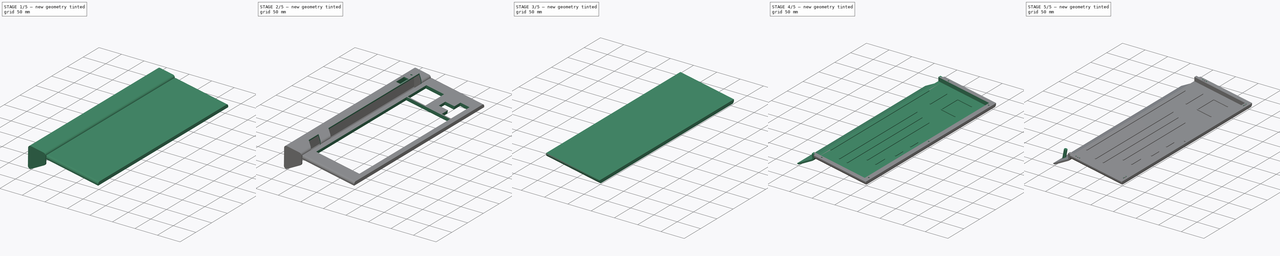
[diagram: build sequence overview — one tinted view per stage of 5, left to right]
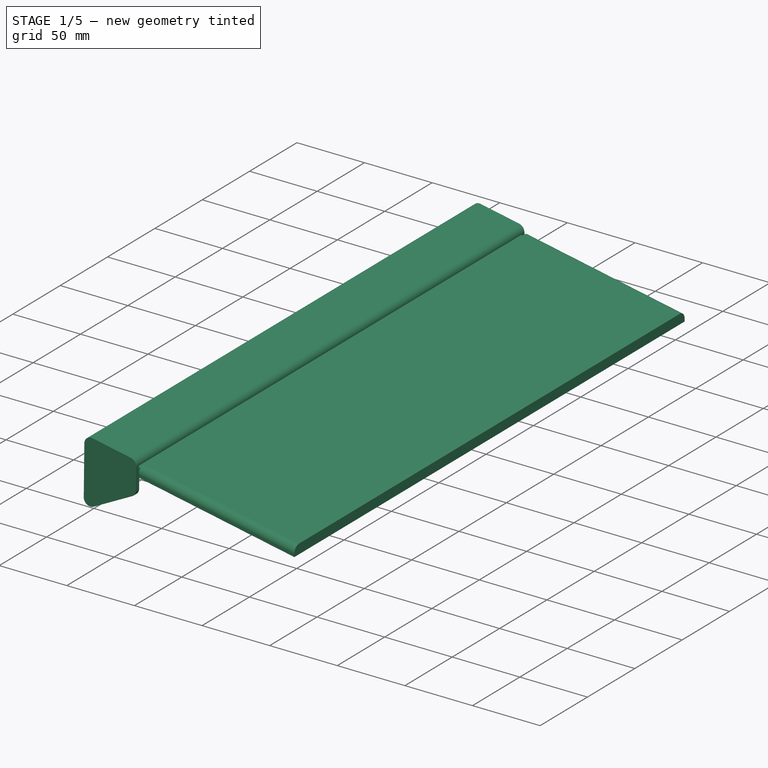
[diagram: stage 1 of 5 — iso view after this stage's code; geometry added in this stage tinted green]
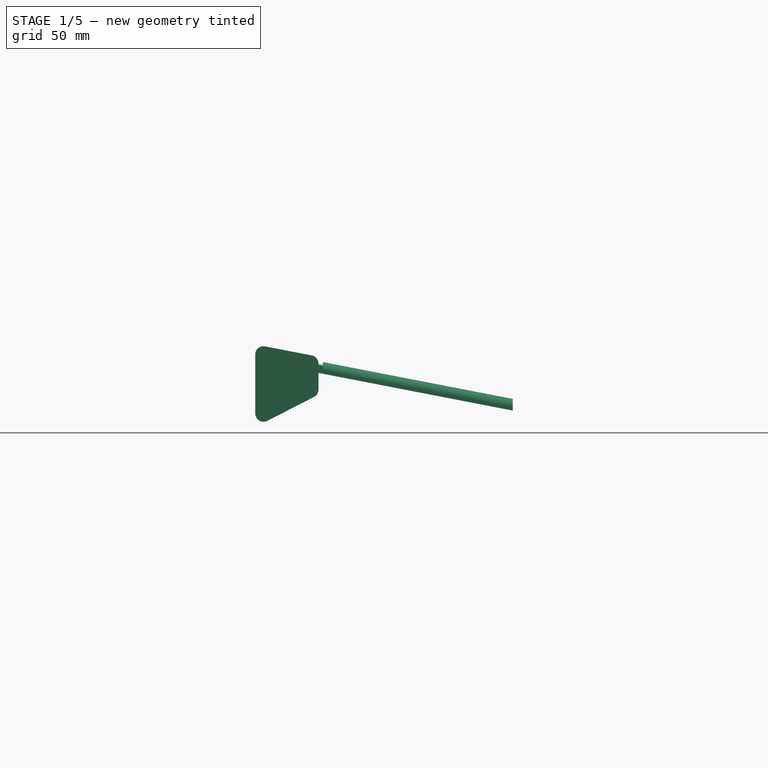
[diagram: stage 1 of 5 — front view after this stage's code; geometry added in this stage tinted green]
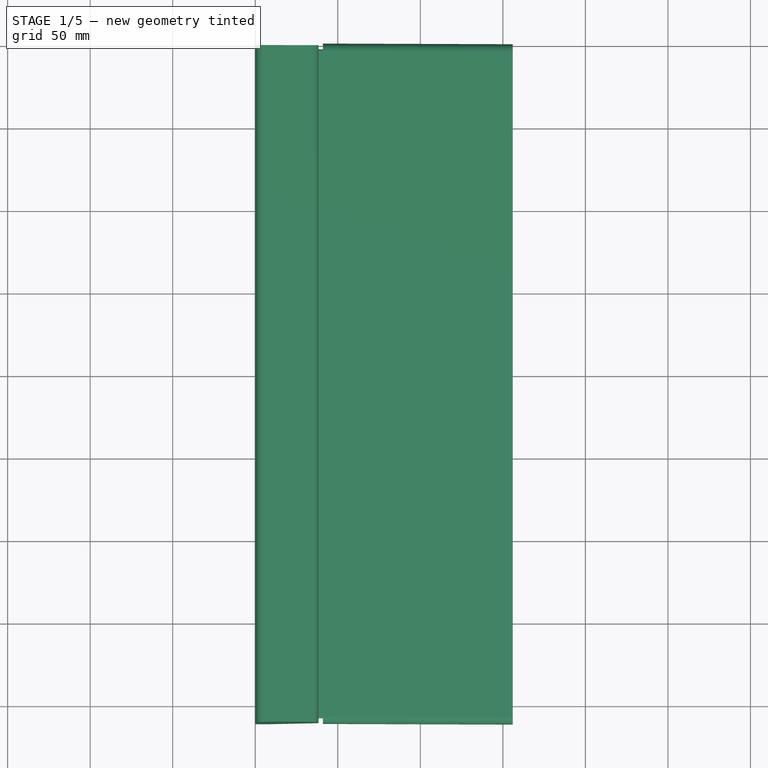
[diagram: stage 1 of 5 — top view after this stage's code; geometry added in this stage tinted green]
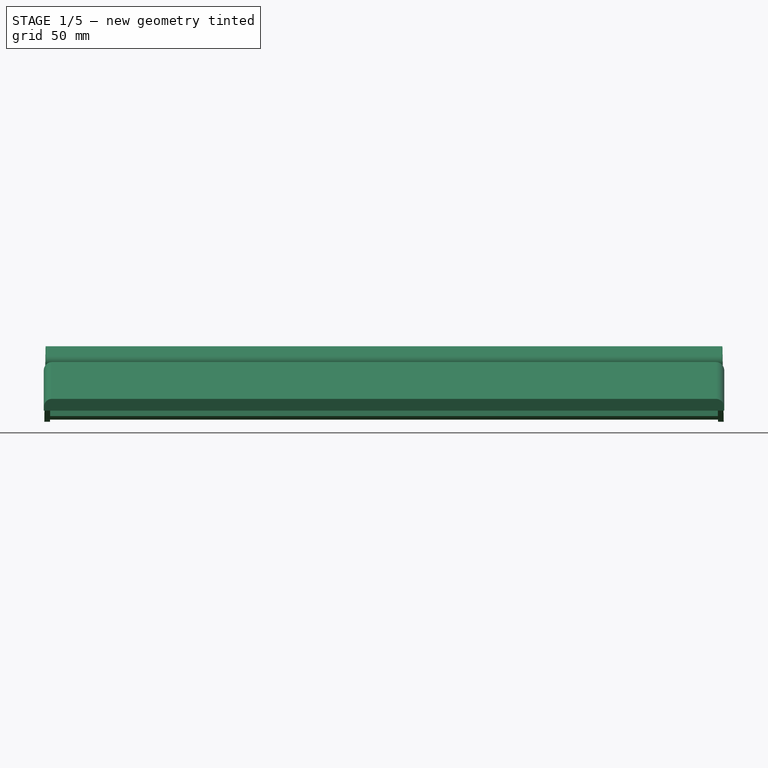
[diagram: stage 1 of 5 — right view after this stage's code; geometry added in this stage tinted green]
FCSTD DOCUMENT  (FreeCAD 1.0R38806 (Git))
Label: DecenTKL-Enclosure
License: All rights reserved
LicenseURL: http://en.wikipedia.org/wiki/All_rights_reserved
objects: Sketcher::SketchObject×25, PartDesign::Pocket×14, PartDesign::Pad×12, PartDesign::SubShapeBinder×12, PartDesign::Plane×10, PartDesign::Line×5, PartDesign::Point×4, App::Part×4, PartDesign::Fillet×3, Part::Offset2D×2, Part::Feature×2, PartDesign::Body×2, PartDesign::Draft×1, PartDesign::Chamfer×1, Part::Part2DObjectPython×1, PartDesign::AdditiveLoft×1, PartDesign::ShapeBinder×1
note: 185 computed .brp shape members not serialized (recipe doc carries the construction recipe); baked Part::Feature solids carry a one-line shape summary decoded from their .brp

FEATURE [Sketcher::SketchObject] Sketch  label="ConsoleKeySectionSketch"
  ArcFitTolerance = 0
  AttachmentSupport = -> [XZ_Plane001]
  FullyConstrained = true
  MakeInternals = false
  MapMode = 5
  Placement = pos=(0,0,0) rot=(1,0,0;1.5708rad)
  sketch-geometry (12):
    g0: LineSegment StartX=5.95204 StartY=54.1257 StartZ=0 EndX=34.2385 EndY=48.6393 EndZ=0
    g1: ArcOfCircle CenterX=33.2865 CenterY=43.7308 CenterZ=0 NormalX=0 NormalY=0 NormalZ=1 AngleXU=0 Radius=5 StartAngle=3e-16 EndAngle=1.37922
    g2: LineSegment StartX=38.2865 StartY=43.7308 StartZ=0 EndX=38.2865 EndY=27.9135 EndZ=0
    g3: ArcOfCircle CenterX=33.2865 CenterY=27.9135 CenterZ=0 NormalX=0 NormalY=0 NormalZ=1 AngleXU=0 Radius=5 StartAngle=5.185 EndAngle=6.28319
    g4: LineSegment StartX=35.5625 StartY=23.4615 StartZ=0 EndX=7.27606 EndY=9 EndZ=0
    g5: ArcOfCircle CenterX=5 CenterY=13.4519 CenterZ=0 NormalX=0 NormalY=0 NormalZ=1 AngleXU=0 Radius=5 StartAngle=3.14159 EndAngle=5.185
    g6: LineSegment StartX=3.46e-14 StartY=13.4519 StartZ=0 EndX=3.46e-14 EndY=49.2171 EndZ=0
    g7: ArcOfCircle CenterX=5 CenterY=49.2171 CenterZ=0 NormalX=0 NormalY=0 NormalZ=1 AngleXU=0 Radius=5 StartAngle=1.37922 EndAngle=3.14159
    g8: GeomPoint [constr] X=0 Y=55.2801 Z=0
    g9: GeomPoint [constr] X=38.2865 Y=47.8542 Z=0
    g10: GeomPoint [constr] X=0 Y=5.2801 Z=0
    g11: GeomPoint [constr] X=38.2865 Y=24.8542 Z=0
  constraints (28):
    c: Tangent(g0,g1) = 1.5708
    c: Tangent(g2,g3) = 1.5708
    c: Tangent(g4,g5) = 1.5708
    c: Tangent(g6,g7) = 1.5708
    c: Tangent(g7,g0) = 1.5708
    c: Tangent(g5,g6) = 1.5708
    c: Tangent(g3,g4) = 1.5708
    c: Tangent(g1,g2) = 1.5708
    c: PointOnObject(g8,g0)
    c: PointOnObject(g8,g6)
    c: PointOnObject(g9,g0)
    c: PointOnObject(g9,g2)
    c: PointOnObject(g11,g2)
    c: PointOnObject(g11,g4)
    c: PointOnObject(g10,g4)
    c: PointOnObject(g10,g6)
    c: Distance(g8,g9) = 39
    c: Radius(g1) = 5
    c: Equal(g1,g7)
    c: Equal(g1,g3)
    c: Equal(g1,g5)
    c: Distance(g9,g11) = 23
    c: Distance(g8,g10) = 50
    c: Distance(g10,g11) = 43
    c: Vertical(g6)
    c: Vertical(g2)
    c: DistanceY(g-1,g4) = 9
    c: DistanceX(g-1,g5) = 0
FEATURE [PartDesign::Pad] Pad  label="ConsoleKeySection"
  Direction = (0,-1,2e-16)
  Length = 410
  Length2 = 10
  Placement = pos=(0,0,0) rot=(1,0,0;1.5708rad)
  Profile = -> Sketch
  ReferenceAxis = -> Sketch [N_Axis]
  Suppressed = false
  Type = 0
FEATURE [PartDesign::Draft] Draft  label="KeySectionDraft"
  Angle = 1
  Base = -> Pad [Face10,Face9]
  BaseFeature = -> Pad
  NeutralPlane = -> Pad [Face1]
  Placement = pos=(0,0,0) rot=(1,0,0;1.5708rad)
  SupportTransform = false
  Suppressed = false
FEATURE [PartDesign::Plane] DatumPlane  label="KeyboardSectionBackPlane"
  AttachmentOffset = pos=(0,0,41) rot=(0,0,1;0rad)
  AttachmentSupport = -> [YZ_Plane001]
  Length = 473.273
  MapMode = 2
  Placement = pos=(41,0,0) rot=(0.57735,0.57735,0.57735;2.0944rad)
  ResizeMode = 0
  Width = 116.389
FEATURE [PartDesign::Line] DatumLine  label="SlopeDatumLineLeft"
  AttacherType = Attacher::AttachEngineLine
  AttachmentSupport = -> [Draft]
  Length = 20
  MapMode = 29
  Placement = pos=(10.3332,-410,53.2759) rot=(0.610836,0.610836,0.503744;2.20832rad)
  ResizeMode = 0
FEATURE [PartDesign::Point] DatumPoint  label="KeyboardSectionBackPlaneAndSlopeIntersectionDatumPointLeft"
  AttacherType = Attacher::AttachEnginePoint
  AttachmentSupport = -> [DatumLine,DatumPlane]
  MapMode = 40
  Placement = pos=(41,-410,47.3279) rot=(0,0,1;0rad)
FEATURE [PartDesign::Line] DatumLine001  label="SlopeDatumLineRight"
  AttacherType = Attacher::AttachEngineLine
  AttachmentSupport = -> [Sketch]
  Length = 20
  MapMode = 29
  Placement = pos=(10.3332,1.18e-14,53.2759) rot=(0.610836,0.610836,0.503744;2.20832rad)
  ResizeMode = 0
FEATURE [PartDesign::Point] DatumPoint001  label="KeyboardSectionBackPlaneAndSlopeIntersectionDatumPointRight"
  AttacherType = Attacher::AttachEnginePoint
  AttachmentSupport = -> [DatumLine001,DatumPlane]
  MapMode = 40
  Placement = pos=(41,1.86e-14,47.3279) rot=(0,0,1;0rad)
FEATURE [Sketcher::SketchObject] Sketch001  label="KeyboardSectionSketch"
  ArcFitTolerance = 0
  AttachmentSupport = -> [DatumPlane]
  ExternalGeometry = -> [DatumPoint,DatumPoint001]
  FullyConstrained = true
  MakeInternals = false
  MapMode = 5
  Placement = pos=(41,0,0) rot=(0.57735,0.57735,0.57735;2.0944rad)
  sketch-geometry (6):
    g0: LineSegment StartX=-411.1 StartY=37.5279 StartZ=0 EndX=1.1 EndY=37.5279 EndZ=0
    g1: LineSegment StartX=1.1 StartY=37.5279 StartZ=0 EndX=1.1 EndY=39.6279 EndZ=0
    g2: LineSegment StartX=-411.1 StartY=37.5279 StartZ=0 EndX=-411.1 EndY=39.6279 EndZ=0
    g3: ArcOfCircle CenterX=-406.1 CenterY=39.6279 CenterZ=0 NormalX=0 NormalY=0 NormalZ=1 AngleXU=0 Radius=5 StartAngle=1.5708 EndAngle=3.14159
    g4: ArcOfCircle CenterX=-3.9 CenterY=39.6279 CenterZ=0 NormalX=0 NormalY=0 NormalZ=1 AngleXU=0 Radius=5 StartAngle=0 EndAngle=1.5708
    g5: LineSegment StartX=-406.1 StartY=44.6279 StartZ=0 EndX=-3.9 EndY=44.6279 EndZ=0
  constraints (20):
    c: Horizontal(g0)
    c: Coincident(g1,g0)
    c: Vertical(g1)
    c: Coincident(g2,g0)
    c: Vertical(g2)
    c: Coincident(g3,g2)
    c: Coincident(g4,g1)
    c: Coincident(g5,g3)
    c: Coincident(g5,g4)
    c: Horizontal(g5)
    c: Vertical(g3,g3)
    c: Vertical(g4,g4)
    c: Horizontal(g2,g3)
    c: Horizontal(g4,g1)
    c: Equal(g2,g1)
    c: Radius(g4) = 5
    c: DistanceX(g2,g-3) = 1.1
    c: DistanceX(g-4,g1) = 1.1
    c: DistanceY(g0,g3) = 7.1
    c: DistanceY(g3,g-3) = 2.7
FEATURE [Sketcher::SketchObject] Sketch002  label="ConsoleToKEyboardSectionJoinSketch"
  ArcFitTolerance = 0
  AttachmentSupport = -> [DatumPlane]
  ExternalGeometry = -> [Sketch001]
  FullyConstrained = true
  MakeInternals = false
  MapMode = 5
  Placement = pos=(41,0,0) rot=(0.57735,0.57735,0.57735;2.0944rad)
  sketch-geometry (8):
    g0: LineSegment StartX=-407.6 StartY=37.5279 StartZ=0 EndX=-2.4 EndY=37.5279 EndZ=0
    g1: LineSegment StartX=-406.4 StartY=42.8279 StartZ=0 EndX=-3.6 EndY=42.8279 EndZ=0
    g2: LineSegment [constr] StartX=-411.1 StartY=37.5279 StartZ=0 EndX=-407.6 EndY=37.5279 EndZ=0
    g3: LineSegment [constr] StartX=-2.4 StartY=37.5279 StartZ=0 EndX=1.1 EndY=37.5279 EndZ=0
    g4: ArcOfCircle CenterX=-406.4 CenterY=41.6279 CenterZ=0 NormalX=0 NormalY=0 NormalZ=1 AngleXU=0 Radius=1.2 StartAngle=1.5708 EndAngle=3.14159
    g5: LineSegment StartX=-407.6 StartY=37.5279 StartZ=0 EndX=-407.6 EndY=41.6279 EndZ=0
    g6: ArcOfCircle CenterX=-3.6 CenterY=41.6279 CenterZ=0 NormalX=0 NormalY=0 NormalZ=1 AngleXU=0 Radius=1.2 StartAngle=6e-16 EndAngle=1.5708
    g7: LineSegment StartX=-2.4 StartY=41.6279 StartZ=0 EndX=-2.4 EndY=37.5279 EndZ=0
  constraints (24):
    c: PointOnObject(g0,g-3)
    c: PointOnObject(g0,g-3)
    c: Horizontal(g1)
    c: DistanceX(g-3,g0) = 3.5
    c: DistanceY(g1,g-4) = 1.8
    c: Coincident(g2,g-3)
    c: Coincident(g2,g0)
    c: Coincident(g3,g0)
    c: Coincident(g3,g-3)
    c: Vertical(g4,g4)
    c: Coincident(g4,g1)
    c: Vertical(g4,g0)
    c: Horizontal(g4,g4)
    c: Radius(g4) = 1.2
    c: Coincident(g5,g0)
    c: Coincident(g5,g4)
    c: Equal(g4,g6)
    c: Horizontal(g6,g6)
    c: Vertical(g6,g6)
    c: Vertical(g0,g6)
    c: Coincident(g1,g6)
    c: Coincident(g7,g6)
    c: Coincident(g7,g0)
    c: Equal(g3,g2)
FEATURE [PartDesign::Pad] Pad001  label="ConsoleToKeyboardSectionJoin"
  BaseFeature = -> Draft
  Direction = (0.981705,0,-0.190408)
  Length = 10
  Length2 = 10
  Placement = pos=(0,0,0) rot=(1,0,0;1.5708rad)
  Profile = -> Sketch002
  ReferenceAxis = -> DatumLine
  Reversed = true
  Suppressed = false
  Type = 3
  UpToFace = -> Draft [Face3]
FEATURE [PartDesign::Pad] Pad002  label="KeyboardSectionPad"
  BaseFeature = -> Pad001
  Direction = (0.981705,0,-0.190408)
  Length = 115
  Length2 = 10
  Placement = pos=(0,0,0) rot=(1,0,0;1.5708rad)
  Profile = -> Sketch001
  ReferenceAxis = -> DatumLine
  Suppressed = false
  Type = 0
FEATURE [PartDesign::Plane] DatumPlane001  label="ConsoleSectionLeftInnerPlane"
  AttachmentOffset = pos=(0,0,-3.4) rot=(0,0,1;0rad)
  AttachmentSupport = -> [Draft]
  Length = 207.603
  MapMode = 5
  Placement = pos=(1.35411,-407.423,6.98148) rot=(0.999997,0.00169,0.001662;1.55367rad)
  ResizeMode = 0
  Width = 111.827
FEATURE [PartDesign::Plane] DatumPlane002  label="ConsoleSectionRightInnerPlane"
  AttachmentOffset = pos=(0,0,-3.4) rot=(0,0,1;0rad)
  AttachmentSupport = -> [Draft]
  Length = 207.603
  MapMode = 5
  Placement = pos=(-0.00815113,-2.45251,-0.0420255) rot=(-0.999997,0.00169,-0.001662;1.55367rad)
  ResizeMode = 0
  Width = 111.827
FEATURE [Sketcher::SketchObject] Sketch003  label="ConsoleSectionCavitySketch"
  ArcFitTolerance = 0
  AttachmentOffset = pos=(0,0,10) rot=(0,0,1;0rad)
  AttachmentSupport = -> [XZ_Plane001]
  ExternalGeometry = -> [Sketch,Pad001]
  FullyConstrained = true
  MakeInternals = false
  MapMode = 5
  Placement = pos=(0,-10,2.2e-15) rot=(1,0,0;1.5708rad)
  sketch-geometry (22):
    g0: ArcOfCircle CenterX=5 CenterY=49.2171 CenterZ=0 NormalX=0 NormalY=0 NormalZ=1 AngleXU=0 Radius=1.8 StartAngle=1.37922 EndAngle=3.14159
    g1: LineSegment [constr] StartX=0 StartY=49.2171 StartZ=0 EndX=5 EndY=49.2171 EndZ=0
    g2: LineSegment [constr] StartX=5 StartY=49.2171 StartZ=0 EndX=5.95204 EndY=54.1257 EndZ=0
    g3: LineSegment [constr] StartX=5.95204 StartY=54.1257 StartZ=0 EndX=34.2385 EndY=48.6393 EndZ=0
    g4: LineSegment [constr] StartX=33.2865 StartY=43.7308 StartZ=0 EndX=34.2385 EndY=48.6393 EndZ=0
    g5: LineSegment [constr] StartX=33.2865 StartY=43.7308 StartZ=0 EndX=38.2865 EndY=43.7308 EndZ=0
    g6: ArcOfCircle CenterX=33.2865 CenterY=43.7308 CenterZ=0 NormalX=0 NormalY=0 NormalZ=1 AngleXU=0 Radius=1.8 StartAngle=-8.9e-15 EndAngle=1.37922
    g7: LineSegment StartX=5.34274 StartY=50.9842 StartZ=0 EndX=33.6292 EndY=45.4978 EndZ=0
    g8: LineSegment [constr] StartX=1.24e-14 StartY=13.4519 StartZ=0 EndX=5 EndY=13.4519 EndZ=0
    g9: LineSegment [constr] StartX=5 StartY=13.4519 StartZ=0 EndX=7.27606 EndY=9 EndZ=0
    g10: LineSegment [constr] StartX=33.2865 StartY=27.9135 StartZ=0 EndX=38.2865 EndY=27.9135 EndZ=0
    g11: LineSegment [constr] StartX=33.2865 StartY=27.9135 StartZ=0 EndX=35.5625 EndY=23.4615 EndZ=0
    g12: LineSegment StartX=3.2 StartY=49.2171 StartZ=0 EndX=3.2 EndY=16.9727 EndZ=0
    g13: LineSegment [constr] StartX=7.27606 StartY=9 StartZ=0 EndX=35.5625 EndY=23.4615 EndZ=0
    g14: LineSegment StartX=-17.3575 StartY=0 StartZ=0 EndX=41 EndY=0 EndZ=0
    g15: LineSegment StartX=41 StartY=37.5279 StartZ=0 EndX=41 EndY=0 EndZ=0
    g16: LineSegment StartX=41 StartY=37.5279 StartZ=0 EndX=35.0865 EndY=38.6748 EndZ=0
    g17: LineSegment StartX=35.0865 StartY=38.6748 StartZ=0 EndX=35.0865 EndY=43.7308 EndZ=0
    g18: GeomPoint [constr] X=5.81938 Y=11.8492 Z=0
    g19: LineSegment [constr] StartX=5.81938 StartY=11.8492 StartZ=0 EndX=34.1059 EndY=26.3108 EndZ=0
    g20: LineSegment StartX=3.2 StartY=16.9727 StartZ=0 EndX=5.81938 EndY=11.8492 EndZ=0
    g21: LineSegment StartX=-17.3575 StartY=0 StartZ=0 EndX=5.81938 EndY=11.8492 EndZ=0
  constraints (53):
    c: Coincident(g0,g-3)
    c: Coincident(g1,g-3)
    c: Coincident(g1,g0)
    c: Coincident(g2,g0)
    c: Coincident(g2,g-3)
    c: Coincident(g3,g2)
    c: Coincident(g3,g-4)
    c: Coincident(g4,g-4)
    c: Coincident(g4,g3)
    c: Coincident(g5,g4)
    c: Coincident(g5,g-4)
    c: PointOnObject(g0,g2)
    c: PointOnObject(g0,g1)
    c: DistanceX(g1,g0) = 3.2
    c: Coincident(g6,g4)
    c: PointOnObject(g6,g4)
    c: PointOnObject(g6,g5)
    c: DistanceX(g6,g5) = 3.2
    c: Coincident(g7,g0)
    c: Coincident(g7,g6)
    c: Coincident(g8,g-6)
    c: Coincident(g8,g-6)
    c: Coincident(g9,g8)
    c: Coincident(g9,g-6)
    c: Coincident(g10,g-5)
    c: Coincident(g10,g-5)
    c: Coincident(g11,g10)
    c: Coincident(g11,g-5)
    c: DistanceX(g8,g12) = 3.2
    c: Coincident(g12,g0)
    c: Coincident(g13,g9)
    c: Coincident(g13,g11)
    c: Horizontal(g14)
    c: Coincident(g15,g14)
    c: Vertical(g15)
    c: Coincident(g15,g-7)
    c: Coincident(g16,g15)
    c: Coincident(g17,g16)
    c: Coincident(g17,g6)
    c: Vertical(g17)
    c: PointOnObject(g16,g-7)
    c: PointOnObject(g18,g9)
    c: Distance(g18,g9) = 3.2
    c: Coincident(g19,g18)
    c: PointOnObject(g19,g11)
    c: Parallel(g19,g13)
    c: PointOnObject(g14,g19)
    c: Coincident(g20,g12)
    c: Coincident(g20,g18)
    c: Coincident(g21,g14)
    c: Coincident(g21,g20)
    c: PointOnObject(g8,g20)
    c: PointOnObject(g14,g-1)
FEATURE [PartDesign::Pocket] Pocket  label="ConsoleKeyCavityPocketRight"
  BaseFeature = -> Pad002
  Direction = (0,1,-2e-16)
  Length = 0
  Length2 = 5
  Placement = pos=(0,0,0) rot=(1,0,0;1.5708rad)
  Profile = -> Sketch003
  ReferenceAxis = -> Sketch003 [N_Axis]
  Refine = true
  Reversed = true
  Suppressed = false
  Type = 3
  UpToFace = -> DatumPlane001 [Plane]
FEATURE [PartDesign::Pocket] Pocket001  label="ConsoleKeyCavityPocketLeft"
  BaseFeature = -> Pocket
  Direction = (0,1,-2e-16)
  Length = 0
  Length2 = 5
  Placement = pos=(0,0,0) rot=(1,0,0;1.5708rad)
  Profile = -> Sketch003
  ReferenceAxis = -> Sketch003 [N_Axis]
  Refine = true
  Suppressed = false
  Type = 3
  UpToFace = -> DatumPlane002 [Plane]
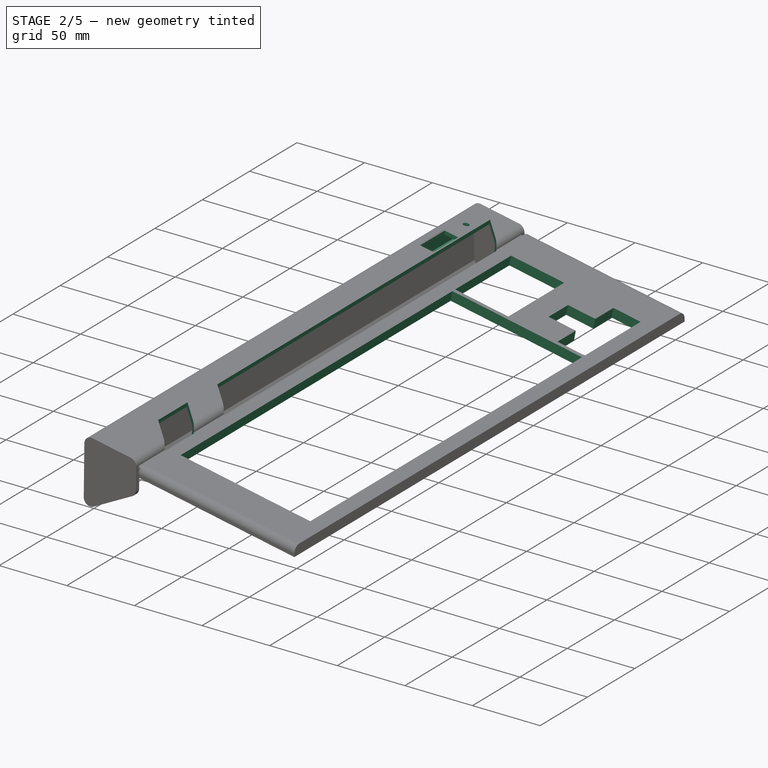
[diagram: stage 2 of 5 — iso view after this stage's code; geometry added in this stage tinted green]
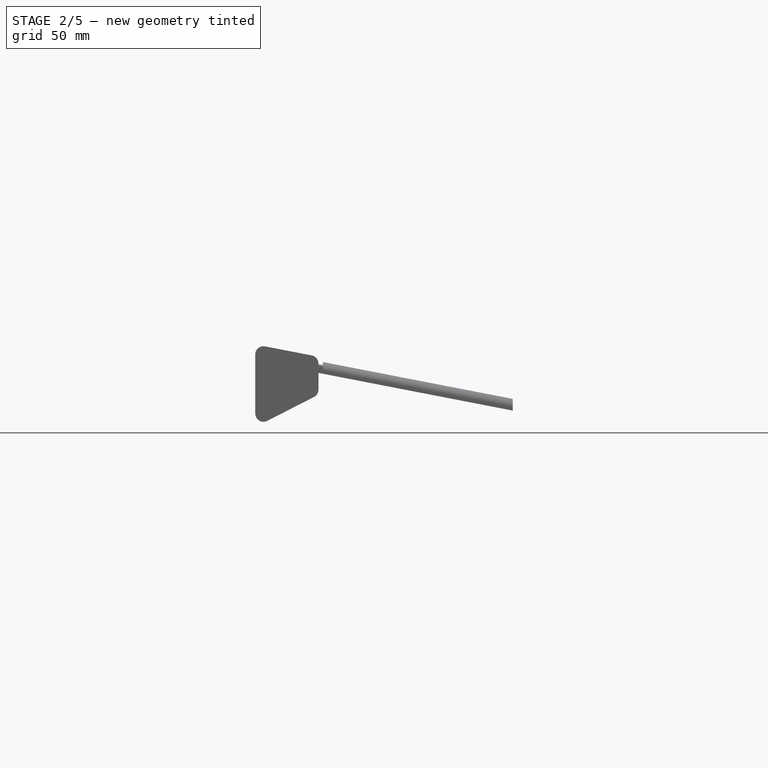
[diagram: stage 2 of 5 — front view after this stage's code; geometry added in this stage tinted green]
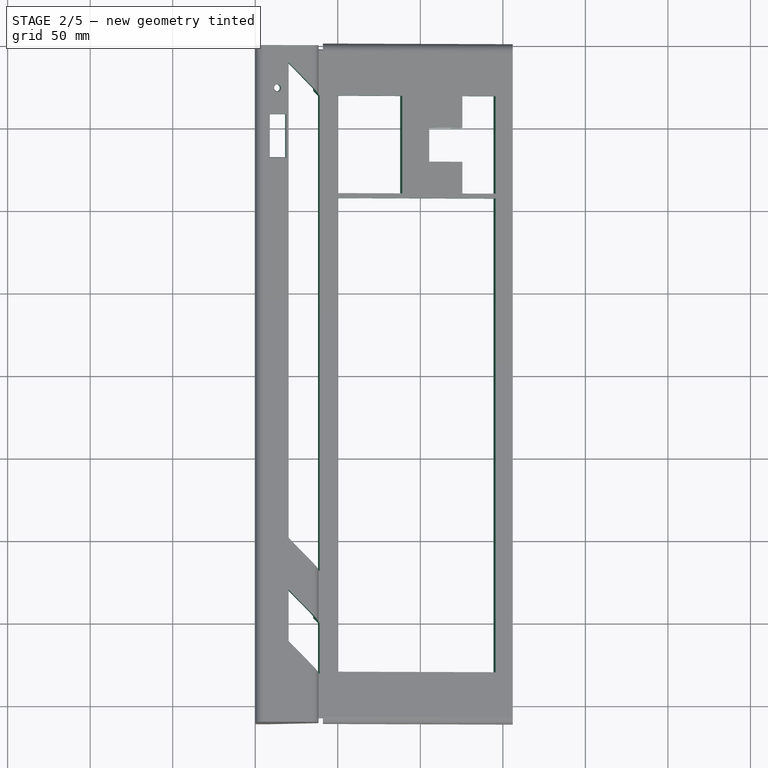
[diagram: stage 2 of 5 — top view after this stage's code; geometry added in this stage tinted green]
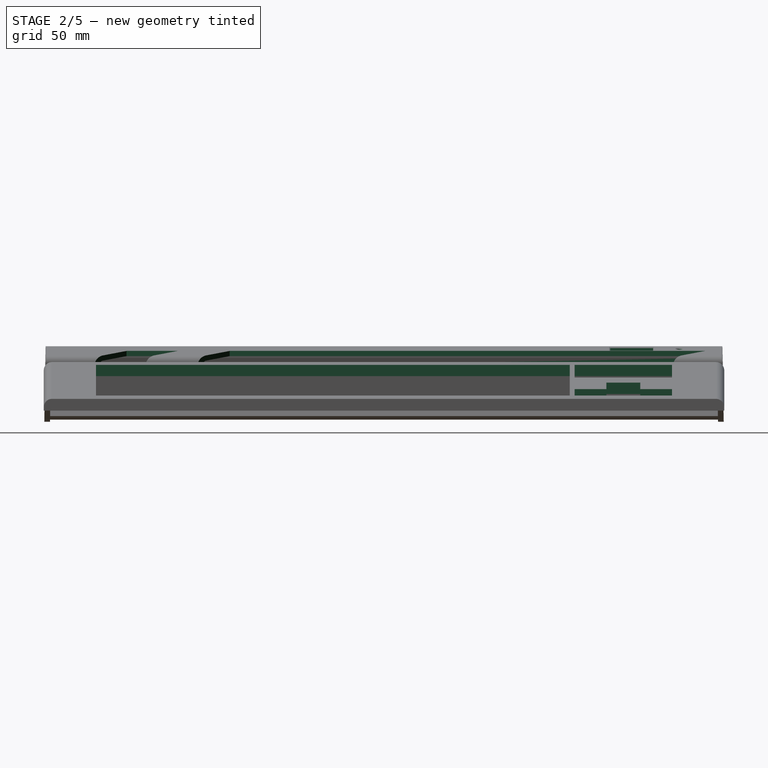
[diagram: stage 2 of 5 — right view after this stage's code; geometry added in this stage tinted green]
FEATURE [PartDesign::Plane] DatumPlane003  label="KeyboardSlopeDatumPlane"
  AttachmentSupport = -> [DatumLine001,DatumLine]
  Length = 494.089
  MapMode = 13
  Placement = pos=(10.6605,-136.667,53.2124) rot=(0.095208,0.095208,0.990894;1.57994rad)
  ResizeMode = 0
  Width = 250.761
FEATURE [Sketcher::SketchObject] Sketch004  label="KeyboardCutoutSketch"
  ArcFitTolerance = 0
  AttachmentSupport = -> [DatumPlane003]
  ExternalGeometry = -> [DatumPoint001,DatumPoint]
  FullyConstrained = true
  MakeInternals = false
  MapMode = 5
  Placement = pos=(10.6605,-136.667,53.2124) rot=(0.095208,0.095208,0.990894;1.57994rad)
  sketch-geometry (34):
    g0: LineSegment StartX=-242.833 StartY=-40.4049 StartZ=0 EndX=44.1667 EndY=-40.4049 EndZ=0
    g1: LineSegment StartX=44.1667 StartY=-40.4049 StartZ=0 EndX=44.1667 EndY=-138.005 EndZ=0
    g2: LineSegment StartX=44.1667 StartY=-138.005 StartZ=0 EndX=-242.833 EndY=-138.005 EndZ=0
    g3: LineSegment StartX=-242.833 StartY=-138.005 StartZ=0 EndX=-242.833 EndY=-40.4049 EndZ=0
    g4: LineSegment StartX=-181.833 StartY=-29.7049 StartZ=0 EndX=-161.833 EndY=-9.70495 EndZ=0
    g5: LineSegment StartX=-161.833 StartY=-9.70495 StartZ=0 EndX=126.167 EndY=-9.70495 EndZ=0
    g6: LineSegment StartX=126.167 StartY=-9.70495 StartZ=0 EndX=106.167 EndY=-29.7049 EndZ=0
    g7: LineSegment StartX=106.167 StartY=-29.7049 StartZ=0 EndX=-181.833 EndY=-29.7049 EndZ=0
    g8: LineSegment StartX=47.1167 StartY=-40.4049 StartZ=0 EndX=106.167 EndY=-40.4049 EndZ=0
    g9: LineSegment StartX=106.167 StartY=-40.4049 StartZ=0 EndX=106.167 EndY=-80.4049 EndZ=0
    g10: LineSegment StartX=106.167 StartY=-80.4049 StartZ=0 EndX=47.1167 EndY=-80.4049 EndZ=0
    g11: LineSegment StartX=47.1167 StartY=-80.4049 StartZ=0 EndX=47.1167 EndY=-40.4049 EndZ=0
    g12: LineSegment StartX=47.1167 StartY=-138.005 StartZ=0 EndX=47.1167 EndY=-117.505 EndZ=0
    g13: LineSegment StartX=47.1167 StartY=-117.505 StartZ=0 EndX=66.3917 EndY=-117.505 EndZ=0
    g14: LineSegment StartX=66.3917 StartY=-117.505 StartZ=0 EndX=66.3917 EndY=-97.0049 EndZ=0
    g15: LineSegment StartX=66.3917 StartY=-97.0049 StartZ=0 EndX=86.8917 EndY=-97.0049 EndZ=0
    g16: LineSegment StartX=86.8917 StartY=-97.0049 StartZ=0 EndX=86.8917 EndY=-117.505 EndZ=0
    g17: LineSegment StartX=86.8917 StartY=-117.505 StartZ=0 EndX=106.167 EndY=-117.505 EndZ=0
    g18: LineSegment StartX=106.167 StartY=-117.505 StartZ=0 EndX=106.167 EndY=-138.005 EndZ=0
    g19: LineSegment StartX=106.167 StartY=-138.005 StartZ=0 EndX=47.1167 EndY=-138.005 EndZ=0
    g20: GeomPoint [constr] X=-68.3333 Y=-138.005 Z=0
    g21: LineSegment [constr] StartX=-68.3333 StartY=-138.005 StartZ=0 EndX=-68.3333 EndY=-30.9049 EndZ=0
    g22: LineSegment [constr] StartX=-273.333 StartY=-30.9049 StartZ=0 EndX=136.667 EndY=-30.9049 EndZ=0
    g23: LineSegment StartX=-244.333 StartY=-29.7049 StartZ=0 EndX=-224.333 EndY=-9.70495 EndZ=0
    g24: LineSegment StartX=-224.333 StartY=-9.70495 StartZ=0 EndX=-193.333 EndY=-9.70495 EndZ=0
    g25: LineSegment StartX=-193.333 StartY=-9.70495 StartZ=0 EndX=-213.333 EndY=-29.7049 EndZ=0
    g26: LineSegment StartX=-213.333 StartY=-29.7049 StartZ=0 EndX=-244.333 EndY=-29.7049 EndZ=0
    g27: Circle CenterX=110.733 CenterY=-2.91495 CenterZ=0 NormalX=0 NormalY=0 NormalZ=1 AngleXU=0 Radius=2
    g28: GeomPoint [constr] X=-233.267 Y=-50.1649 Z=0
    g29: LineSegment StartX=68.7333 StartY=1.83505 StartZ=0 EndX=68.7333 EndY=-8.16495 EndZ=0
    g30: LineSegment StartX=68.7333 StartY=-8.16495 StartZ=0 EndX=94.7333 EndY=-8.16495 EndZ=0
    g31: LineSegment StartX=94.7333 StartY=-8.16495 StartZ=0 EndX=94.7333 EndY=1.83505 EndZ=0
    g32: LineSegment StartX=94.7333 StartY=1.83505 StartZ=0 EndX=68.7333 EndY=1.83505 EndZ=0
    g33: GeomPoint [constr] X=81.7333 Y=-3.16495 Z=0
  constraints (95):
    c: Horizontal(g0)
    c: Coincident(g0,g1)
    c: Vertical(g1)
    c: Coincident(g3,g0)
    c: Vertical(g3)
    c: Coincident(g4,g5)
    c: Horizontal(g5)
    c: Coincident(g5,g6)
    c: Coincident(g6,g7)
    c: Coincident(g7,g4)
    c: Horizontal(g7)
    c: Angle(g7,g4) = 0.785398
    c: Angle(g5,g6) = 0.785398
    c: DistanceY(g-4,g6) = 1.2
    c: DistanceY(g4,g4) = 20
    c: DistanceX(g5,g5) = 288
    c: DistanceY(g0,g-3) = 9.5
    c: DistanceY(g2,g0) = 97.6
    c: DistanceX(g0,g0) = 287
    c: Coincident(g2,g3)
    c: Coincident(g2,g1)
    c: Horizontal(g2)
    c: Coincident(g8,g9)
    c: Coincident(g9,g10)
    c: Coincident(g10,g11)
    c: Coincident(g11,g8)
    c: Horizontal(g8)
    c: Horizontal(g10)
    c: Vertical(g9)
    c: Vertical(g11)
    c: Vertical(g12)
    c: Coincident(g12,g13)
    c: Horizontal(g13)
    c: Coincident(g13,g14)
    c: Vertical(g14)
    c: Coincident(g14,g15)
    c: Horizontal(g15)
    c: Coincident(g15,g16)
    c: Vertical(g16)
    c: Coincident(g16,g17)
    c: Horizontal(g17)
    c: Coincident(g17,g18)
    c: Vertical(g18)
    c: Coincident(g18,g19)
    c: Coincident(g19,g12)
    c: Horizontal(g19)
    c: Horizontal(g13,g16)
    c: Vertical(g10,g12)
    c: Vertical(g17,g9)
    c: Equal(g13,g17)
    c: Equal(g12,g14)
    c: Horizontal(g1,g12)
    c: Horizontal(g0,g8)
    c: DistanceX(g2,g18) = 349
    c: DistanceY(g12,g12) = 20.5
    c: DistanceY(g9,g9) = 40
    c: Vertical(g6,g8)
    c: Symmetric(g2,g18,g20)
    c: Coincident(g21,g20)
    c: Coincident(g22,g-4)
    c: Coincident(g22,g-3)
    c: PointOnObject(g21,g22)
    c: Symmetric(g22,g22,g21)
    c: Coincident(g23,g24)
    c: Horizontal(g24)
    c: Coincident(g24,g25)
    c: Coincident(g25,g26)
    c: Coincident(g26,g23)
    c: Horizontal(g26)
    c: Horizontal(g24,g4)
    c: Horizontal(g25,g4)
    c: Angle(g26,g23) = 0.785398
    c: Angle(g24,g25) = 0.785398
    c: DistanceX(g24,g24) = 31
    c: Diameter(g27) = 4
    c: DistanceX(g0,g28) = 9.56667
    c: DistanceY(g28,g0) = 9.76
    c: DistanceX(g28,g27) = 344
    c: DistanceY(g28,g27) = 47.25
    c: Coincident(g29,g30)
    c: Coincident(g30,g31)
    c: Coincident(g31,g32)
    c: Coincident(g32,g29)
    c: Horizontal(g30)
    c: Horizontal(g32)
    c: Vertical(g29)
    c: Vertical(g31)
    c: Symmetric(g30,g29,g33)
    c: DistanceX(g32,g32) = 26
    c: DistanceY(g31,g31) = 10
    c: DistanceX(g28,g33) = 315
    c: DistanceY(g28,g33) = 47
    c: DistanceX(g23,g0) = 1.5
    c: Equal(g15,g18)
    c: DistanceX(g19,g19) = 59.05
FEATURE [PartDesign::Pocket] Pocket002  label="KeyboardCutout"
  BaseFeature = -> Pocket001
  Direction = (-0.190408,-1e-16,-0.981705)
  Length = 10
  Length2 = 5
  Placement = pos=(0,0,0) rot=(1,0,0;1.5708rad)
  Profile = -> Sketch004
  ReferenceAxis = -> Sketch004 [N_Axis]
  Refine = true
  Suppressed = false
  Type = 0
FEATURE [Part::Offset2D] Offset2D  label="Keyboard cutout sketch offset"
  Fill = false
  Intersection = false
  Join = 0
  Mode = 1
  SelfIntersection = false
  Source = -> Sketch004
  Value = 2
FEATURE [PartDesign::SubShapeBinder] Binder  label="KeyboardCutoutOffsetBinder"
  BindCopyOnChange = 0
  BindMode = 0
  ClaimChildren = false
  Context = -> Part [Body.Binder.]
  Fuse = false
  MakeFace = true
  OffsetFill = false
  OffsetIntersection = false
  OffsetJoinType = 0
  OffsetOpenResult = false
  PartialLoad = false
  Relative = true
  Support = -> [Offset2D]
  _Version = 2
FEATURE [Sketcher::SketchObject] Sketch005  label="AroundKeyboardPocketSketch"
  ArcFitTolerance = 0
  AttachmentSupport = -> [Pad002]
  ExternalGeometry = -> [DatumPoint,DatumPoint001,Pad002,Binder,Pocket002]
  FullyConstrained = true
  MakeInternals = false
  MapMode = 5
  Placement = pos=(8.50136,9.8e-15,43.8312) rot=(0.995416,0,-0.095643;3.14159rad)
  sketch-geometry (25):
    g0: ArcOfCircle CenterX=40.7383 CenterY=30.5 CenterZ=0 NormalX=0 NormalY=0 NormalZ=1 AngleXU=0 Radius=2 StartAngle=3.14159 EndAngle=4.71239
    g1: ArcOfCircle CenterX=138.338 CenterY=30.5 CenterZ=0 NormalX=0 NormalY=0 NormalZ=1 AngleXU=0 Radius=2 StartAngle=4.71239 EndAngle=6.28319
    g2: LineSegment [constr] StartX=34.2383 StartY=3 StartZ=0 EndX=37.2383 EndY=3 EndZ=0
    g3: LineSegment StartX=37.2383 StartY=3 StartZ=0 EndX=147.247 EndY=3 EndZ=0
    g4: LineSegment StartX=34.2383 StartY=6 StartZ=0 EndX=37.2383 EndY=6 EndZ=0
    g5: LineSegment StartX=37.2383 StartY=6 StartZ=0 EndX=37.2383 EndY=3 EndZ=0
    g6: LineSegment StartX=82.7383 StartY=89.55 StartZ=0 EndX=115.838 EndY=89.55 EndZ=0
    g7: LineSegment StartX=115.838 StartY=89.55 StartZ=0 EndX=115.838 EndY=72.275 EndZ=0
    g8: LineSegment StartX=115.838 StartY=72.275 StartZ=0 EndX=95.3383 EndY=72.275 EndZ=0
    g9: LineSegment StartX=95.3383 StartY=72.275 StartZ=0 EndX=95.3383 EndY=47.775 EndZ=0
    g10: LineSegment StartX=95.3383 StartY=47.775 StartZ=0 EndX=115.838 EndY=47.775 EndZ=0
    g11: LineSegment StartX=115.838 StartY=47.775 StartZ=0 EndX=115.838 EndY=30.5 EndZ=0
    g12: LineSegment StartX=82.7383 StartY=30.5 StartZ=0 EndX=82.7383 EndY=89.55 EndZ=0
    g13: LineSegment StartX=82.7383 StartY=30.5 StartZ=0 EndX=115.838 EndY=30.5 EndZ=0
    g14: LineSegment StartX=40.7383 StartY=28.5 StartZ=0 EndX=138.338 EndY=28.5 EndZ=0
    g15: LineSegment StartX=140.338 StartY=30.5 StartZ=0 EndX=140.338 EndY=379.5 EndZ=0
    g16: ArcOfCircle CenterX=40.7383 CenterY=379.5 CenterZ=0 NormalX=0 NormalY=0 NormalZ=1 AngleXU=0 Radius=2 StartAngle=1.5708 EndAngle=3.14159
    g17: LineSegment StartX=40.7383 StartY=381.5 StartZ=0 EndX=138.338 EndY=381.5 EndZ=0
    g18: LineSegment StartX=38.7383 StartY=379.5 StartZ=0 EndX=38.7383 EndY=30.5 EndZ=0
    g19: ArcOfCircle CenterX=138.338 CenterY=379.5 CenterZ=0 NormalX=0 NormalY=0 NormalZ=1 AngleXU=0 Radius=2 StartAngle=-5.3e-15 EndAngle=1.57079
    g20: LineSegment StartX=147.247 StartY=3 StartZ=0 EndX=147.247 EndY=407 EndZ=0
    g21: LineSegment StartX=147.247 StartY=407 StartZ=0 EndX=37.2383 EndY=407 EndZ=0
    g22: LineSegment StartX=37.2383 StartY=407 StartZ=0 EndX=37.2383 EndY=404 EndZ=0
    g23: LineSegment StartX=37.2383 StartY=404 StartZ=0 EndX=34.2383 EndY=404 EndZ=0
    g24: LineSegment StartX=34.2383 StartY=404 StartZ=0 EndX=34.2383 EndY=6 EndZ=0
  constraints (74):
    c: DistanceY(g-4,g2) = 3  'InnerKeyboardPocketWall'
    c: DistanceX(g-4,g2) = 3
    c: DistanceX(g3,g-5) = 3
    c: DistanceY(g-4,g2) = 3
    c: Horizontal(g0,g0)
    c: Horizontal(g1,g1)
    c: Coincident(g2,g3)
    c: Horizontal(g2)
    c: Horizontal(g3)
    c: Horizontal(g4)
    c: Coincident(g5,g3)
    c: Vertical(g5)
    c: Coincident(g4,g5)
    c: DistanceY(g5,g5) = 3
    c: Coincident(g6,g7)
    c: Coincident(g7,g8)
    c: Coincident(g8,g9)
    c: Vertical(g9)
    c: Coincident(g9,g10)
    c: Coincident(g10,g11)
    c: Coincident(g12,g6)
    c: Horizontal(g6)
    c: Coincident(g6,g-6)
    c: Vertical(g12)
    c: Coincident(g13,g12)
    c: Coincident(g13,g11)
    c: Horizontal(g13)
    c: Vertical(g1,g1)
    c: Vertical(g0,g0)
    c: Equal(g4,g5)
    c: Horizontal(g-13,g12)
    c: DistanceX(g-13,g12) = 2
    c: DistanceX(g9,g-8) = 2
    c: DistanceY(g9,g-8) = 2
    c: Horizontal(g10)
    c: Vertical(g11)
    c: Vertical(g7,g10)
    c: Vertical(g7)
    c: Horizontal(g8)
    c: DistanceY(g-11,g7) = 2
    c: Coincident(g1,g-20)
    c: Coincident(g-19,g0)
    c: Tangent(g14,g0) = -1.5708
    c: Coincident(g14,g1)
    c: Coincident(g15,g1)
    c: Vertical(g15)
    c: Coincident(g16,g-15)
    c: Horizontal(g16,g16)
    c: Vertical(g16,g16)
    c: Coincident(g17,g16)
    c: Horizontal(g17)
    c: Coincident(g18,g16)
    c: Coincident(g18,g0)
    c: Vertical(g18)
    c: Radius(g0) = 2
    c: Horizontal(g-16,g15)
    c: Coincident(g19,g-16)
    c: Coincident(g17,g19)
    c: Coincident(g19,g15)
    c: Coincident(g20,g3)
    c: Vertical(g20)
    c: Coincident(g21,g20)
    c: Horizontal(g21)
    c: Coincident(g22,g21)
    c: Vertical(g22)
    c: Coincident(g23,g22)
    c: Horizontal(g23)
    c: Coincident(g24,g23)
    c: Coincident(g24,g4)
    c: Vertical(g24)
    c: Vertical(g2,g4)
    c: DistanceY(g21,g-3) = 3
    c: DistanceY(g22,g22) = 3
    c: Equal(g23,g22)
FEATURE [PartDesign::Pocket] Pocket003  label="AroundKeyboardPocket"
  BaseFeature = -> Pocket002
  Direction = (0.190408,0,0.981705)
  Length = 4
  Length2 = 5
  Placement = pos=(0,0,0) rot=(1,0,0;1.5708rad)
  Profile = -> Sketch005
  ReferenceAxis = -> Sketch005 [N_Axis]
  Suppressed = false
  Type = 0
FEATURE [Part::Feature] Part__Feature  label="DecenTKL_PCB"
  shape: bbox 390.6 x 146.7 x 1.6 mm, 488 faces (baked)
FEATURE [App::Part] DecenTKL_1  label="DecenTKL PCB"
  Group = -> [Part__Feature]
  Origin = -> Origin002
  Placement = pos=(73.7069,-205,24.3841) rot=(0.095409,0.095409,0.990855;1.57998rad)
  expr: .Placement.Base.y = -410 / 2
FEATURE [PartDesign::SubShapeBinder] Binder001  label="PCB Bottom Shape Binder"
  BindCopyOnChange = 0
  BindMode = 0
  ClaimChildren = false
  Context = -> Part [Body.Binder001.]
  Fuse = false
  MakeFace = true
  OffsetFill = false
  OffsetIntersection = false
  OffsetJoinType = 0
  OffsetOpenResult = false
  PartialLoad = false
  Relative = true
  Support = -> [DecenTKL_1[Part__Feature.Face4]]
  _Version = 2
FEATURE [PartDesign::Line] DatumLine002  label="PCB Left Side"
  AttacherType = Attacher::AttachEngineLine
  AttachmentSupport = -> [Binder001]
  Length = 20
  MapMode = 29
  Placement = pos=(7.25074,-400.306,37.3018) rot=(0.536704,-0.536704,-0.651074;1.98733rad)
  ResizeMode = 0
FEATURE [PartDesign::Line] DatumLine003  label="PCB Right Line"
  AttacherType = Attacher::AttachEngineLine
  AttachmentSupport = -> [Binder001]
  Length = 20
  MapMode = 29
  Placement = pos=(7.25074,-9.69387,37.3018) rot=(0.610901,0.610901,0.503588;2.20857rad)
  ResizeMode = 0
FEATURE [PartDesign::Point] DatumPoint002  label="PCB left edge intersection with back of case"
  AttacherType = Attacher::AttachEnginePoint
  AttachmentSupport = -> [DatumLine002,Pocket003]
  MapMode = 40
  Placement = pos=(3.46e-14,-400.306,38.7112) rot=(0,0,1;0rad)
FEATURE [Sketcher::SketchObject] Sketch006  label="USB Port Sketch"
  ArcFitTolerance = 0
  AttachmentSupport = -> [Pocket003]
  ExternalGeometry = -> [DatumPoint002]
  FullyConstrained = true
  MakeInternals = false
  MapMode = 5
  Placement = pos=(3.46e-14,0,0) rot=(0.707107,0,-0.707107;3.14159rad)
  sketch-geometry (11):
    g0: ArcOfCircle CenterX=-38.7112 CenterY=391.206 CenterZ=0 NormalX=0 NormalY=0 NormalZ=1 AngleXU=0 Radius=1.5 StartAngle=1.5708 EndAngle=3.14159
    g1: LineSegment StartX=-38.7112 StartY=392.706 StartZ=0 EndX=-33.7112 EndY=392.706 EndZ=0
    g2: ArcOfCircle CenterX=-33.7112 CenterY=391.206 CenterZ=0 NormalX=0 NormalY=0 NormalZ=1 AngleXU=0 Radius=1.5 StartAngle=-1.8e-15 EndAngle=1.5708
    g3: LineSegment StartX=-32.2112 StartY=391.206 StartZ=0 EndX=-32.2112 EndY=382.206 EndZ=0
    g4: ArcOfCircle CenterX=-33.7112 CenterY=382.206 CenterZ=0 NormalX=0 NormalY=0 NormalZ=1 AngleXU=0 Radius=1.5 StartAngle=4.71239 EndAngle=6.28319
    g5: LineSegment StartX=-33.7112 StartY=380.706 StartZ=0 EndX=-38.7112 EndY=380.706 EndZ=0
    g6: ArcOfCircle CenterX=-38.7112 CenterY=382.206 CenterZ=0 NormalX=0 NormalY=0 NormalZ=1 AngleXU=0 Radius=1.5 StartAngle=3.14159 EndAngle=4.71239
    g7: LineSegment StartX=-40.2112 StartY=382.206 StartZ=0 EndX=-40.2112 EndY=391.206 EndZ=0
    g8: GeomPoint [constr] X=-40.2112 Y=392.706 Z=0
    g9: GeomPoint [constr] X=-32.2112 Y=380.706 Z=0
    g10: GeomPoint [constr] X=-36.2112 Y=386.706 Z=0
  constraints (25):
    c: Tangent(g0,g1) = 1.5708
    c: Tangent(g1,g2) = 1.5708
    c: Tangent(g2,g3) = 1.5708
    c: Tangent(g3,g4) = 1.5708
    c: Tangent(g4,g5) = 1.5708
    c: Tangent(g5,g6) = 1.5708
    c: Tangent(g6,g7) = 1.5708
    c: Tangent(g7,g0) = 1.5708
    c: Horizontal(g1)
    c: Horizontal(g5)
    c: Vertical(g3)
    c: Vertical(g7)
    c: Equal(g0,g2)
    c: Equal(g2,g4)
    c: Equal(g4,g6)
    c: PointOnObject(g8,g1)
    c: PointOnObject(g8,g7)
    c: PointOnObject(g9,g3)
    c: PointOnObject(g9,g5)
    c: Diameter(g0) = 3
    c: DistanceX(g6,g3) = 8
    c: DistanceY(g4,g1) = 12
    c: Symmetric(g6,g2,g10)
    c: DistanceY(g10,g-3) = 13.6
    c: Vertical(g-3,g0)
FEATURE [PartDesign::Point] DatumPoint003  label="PCB right edge intersection with back of case"
  AttacherType = Attacher::AttachEnginePoint
  AttachmentSupport = -> [DatumLine003,Pocket003]
  MapMode = 40
  Placement = pos=(3.46e-14,-9.69387,38.7112) rot=(0,0,1;0rad)
FEATURE [PartDesign::Pocket] Pocket004  label="USB Port"
  BaseFeature = -> Pocket003
  Direction = (0.981627,-1e-16,-0.190809)
  Length = 5
  Length2 = 5
  Placement = pos=(0,0,0) rot=(1,0,0;1.5708rad)
  Profile = -> Sketch006
  ReferenceAxis = -> DatumLine002
  Suppressed = false
  Type = 0
FEATURE [PartDesign::Chamfer] Chamfer
  Angle = 45
  Base = -> Pocket004 [Edge211,Edge210,Edge209,Edge208,Edge212,Edge256]
  BaseFeature = -> Pocket004
  ChamferType = 0
  FlipDirection = false
  Placement = pos=(0,0,0) rot=(1,0,0;1.5708rad)
  Size = 0.5
  Size2 = 1
  SupportTransform = false
  Suppressed = false
  UseAllEdges = false
FEATURE [PartDesign::Line] DatumLine004  label="PCB Bottom Front Line"
  AttacherType = Attacher::AttachEngineLine
  AttachmentSupport = -> [Binder001]
  Length = 20
  MapMode = 29
  Placement = pos=(145.706,0,10.3888) rot=(1,0,0;1.5708rad)
  ResizeMode = 0
FEATURE [Sketcher::SketchObject] Sketch007  label="Screw Column Sketch"
  ArcFitTolerance = 0
  AttachmentSupport = -> [Chamfer]
  ExternalGeometry = -> [DatumLine002,DatumLine003,DatumLine004,Chamfer,Pocket004]
  FullyConstrained = true
  MakeInternals = false
  MapMode = 5
  Placement = pos=(8.50136,1.34e-14,43.8312) rot=(0.995416,0,-0.095643;3.14159rad)
  sketch-geometry (11):
    g0: ArcOfCircle CenterX=47.2383 CenterY=407 CenterZ=0 NormalX=0 NormalY=0 NormalZ=1 AngleXU=0 Radius=6.69412 StartAngle=3.14159 EndAngle=6.28319
    g1: LineSegment StartX=40.5442 StartY=407 StartZ=0 EndX=53.9324 EndY=407 EndZ=0
    g2: ArcOfCircle CenterX=47.2383 CenterY=2.99975 CenterZ=0 NormalX=0 NormalY=0 NormalZ=1 AngleXU=0 Radius=6.69412 StartAngle=0 EndAngle=3.14159
    g3: LineSegment StartX=40.5442 StartY=2.99975 StartZ=0 EndX=53.9324 EndY=2.99975 EndZ=0
    g4: ArcOfCircle CenterX=147.247 CenterY=15.8789 CenterZ=0 NormalX=0 NormalY=0 NormalZ=1 AngleXU=0 Radius=6.18505 StartAngle=1.5708 EndAngle=4.71239
    g5: LineSegment StartX=147.247 StartY=22.064 StartZ=0 EndX=147.247 EndY=9.69387 EndZ=0
    g6: GeomPoint [constr] X=147.247 Y=205 Z=0
    g7: ArcOfCircle CenterX=147.247 CenterY=205 CenterZ=0 NormalX=0 NormalY=0 NormalZ=1 AngleXU=0 Radius=6.18505 StartAngle=1.5708 EndAngle=4.71239
    g8: LineSegment StartX=147.247 StartY=211.185 StartZ=0 EndX=147.247 EndY=198.815 EndZ=0
    g9: ArcOfCircle CenterX=147.247 CenterY=394.121 CenterZ=0 NormalX=0 NormalY=0 NormalZ=1 AngleXU=0 Radius=6.18505 StartAngle=1.5708 EndAngle=4.71239
    g10: LineSegment StartX=147.247 StartY=400.306 StartZ=0 EndX=147.247 EndY=387.936 EndZ=0
  constraints (35):
    c: Coincident(g1,g0)
    c: Coincident(g1,g0)
    c: Tangent(g0,g-3)
    c: Horizontal(g0,g0)
    c: Horizontal(g0,g0)
    c: Horizontal(g2,g2)
    c: Horizontal(g2,g2)
    c: DistanceX(g-8,g0) = 10
    c: Vertical(g0,g2)
    c: Equal(g0,g2)
    c: Tangent(g2,g-4)
    c: Coincident(g3,g2)
    c: Coincident(g3,g2)
    c: Vertical(g4,g4)
    c: Vertical(g4,g4)
    c: Horizontal(g0,g-8)
    c: Tangent(g4,g-5)
    c: PointOnObject(g4,g-4)
    c: Coincident(g5,g4)
    c: Coincident(g5,g4)
    c: Symmetric(g-9,g-9,g6)
    c: Coincident(g7,g6)
    c: Vertical(g7,g6)
    c: Vertical(g6,g7)
    c: Tangent(g7,g-5)
    c: Coincident(g8,g7)
    c: Coincident(g8,g7)
    c: PointOnObject(g9,g-9)
    c: Vertical(g9,g9)
    c: Vertical(g9,g9)
    c: Tangent(g9,g-5)
    c: PointOnObject(g9,g-3)
    c: Coincident(g10,g9)
    c: Coincident(g10,g9)
    c: PointOnObject(g4,g-9)
FEATURE [PartDesign::Pad] Pad003  label="Screw columns"
  BaseFeature = -> Chamfer
  Direction = (-0.190408,0,-0.981705)
  Length = 4
  Length2 = 10
  Placement = pos=(0,0,0) rot=(1,0,0;1.5708rad)
  Profile = -> Sketch007
  ReferenceAxis = -> Sketch007 [N_Axis]
  Refine = true
  Reversed = true
  Suppressed = false
  Type = 0
FEATURE [Sketcher::SketchObject] Sketch008  label="Screw holes sketch"
  ArcFitTolerance = 0
  AttachmentSupport = -> [Pad003]
  ExternalGeometry = -> [Sketch007]
  FullyConstrained = true
  MakeInternals = false
  MapMode = 5
  Placement = pos=(8.50136,1.34e-14,43.8312) rot=(0.995416,0,-0.095643;3.14159rad)
  expr: Constraints[12] = .Constraints.pegDist
  expr: Constraints[17] = .Constraints.pegDist
  sketch-geometry (15):
    g0: Circle CenterX=47.2383 CenterY=405 CenterZ=0 NormalX=0 NormalY=0 NormalZ=1 AngleXU=0 Radius=1.5
    g1: Circle CenterX=145.247 CenterY=394.121 CenterZ=0 NormalX=0 NormalY=0 NormalZ=1 AngleXU=0 Radius=1.5
    g2: Circle CenterX=145.247 CenterY=205 CenterZ=0 NormalX=0 NormalY=0 NormalZ=1 AngleXU=0 Radius=1.5
    g3: Circle CenterX=145.247 CenterY=15.8789 CenterZ=0 NormalX=0 NormalY=0 NormalZ=1 AngleXU=0 Radius=1.5
    g4: Circle CenterX=47.2383 CenterY=4.99975 CenterZ=0 NormalX=0 NormalY=0 NormalZ=1 AngleXU=0 Radius=1.5
    g5: Circle [constr] CenterX=145.247 CenterY=209 CenterZ=0 NormalX=0 NormalY=0 NormalZ=1 AngleXU=0 Radius=1
    g6: Circle [constr] CenterX=145.247 CenterY=201 CenterZ=0 NormalX=0 NormalY=0 NormalZ=1 AngleXU=0 Radius=1
    g7: Circle CenterX=145.247 CenterY=398.121 CenterZ=0 NormalX=0 NormalY=0 NormalZ=1 AngleXU=0 Radius=1
    g8: Circle CenterX=145.247 CenterY=390.121 CenterZ=0 NormalX=0 NormalY=0 NormalZ=1 AngleXU=0 Radius=1
    g9: Circle CenterX=43.2383 CenterY=405 CenterZ=0 NormalX=0 NormalY=0 NormalZ=1 AngleXU=0 Radius=1
    g10: Circle CenterX=51.2383 CenterY=405 CenterZ=0 NormalX=0 NormalY=0 NormalZ=1 AngleXU=0 Radius=1
    g11: Circle CenterX=145.247 CenterY=19.8789 CenterZ=0 NormalX=0 NormalY=0 NormalZ=1 AngleXU=0 Radius=1
    g12: Circle CenterX=145.247 CenterY=11.8789 CenterZ=0 NormalX=0 NormalY=0 NormalZ=1 AngleXU=0 Radius=1
    g13: Circle CenterX=51.2383 CenterY=4.99975 CenterZ=0 NormalX=0 NormalY=0 NormalZ=1 AngleXU=0 Radius=1
    g14: Circle CenterX=43.2383 CenterY=4.99975 CenterZ=0 NormalX=0 NormalY=0 NormalZ=1 AngleXU=0 Radius=1
  constraints (37):
    c: Diameter(g0) = 3
    c: Equal(g0, g1-g4) x4
    c: Diameter(g5) = 2
    c: Equal(g5,g6)
    c: Vertical(g5,g2)
    c: Symmetric(g5,g6,g2)
    c: DistanceY(g6,g5) = 8  'pegDist'
    c: Vertical(g7,g1)
    c: Symmetric(g7,g8,g1)
    c: DistanceY(g8,g7) = 8
    c: Equal(g5,g7)
    c: Equal(g7,g8)
    c: Equal(g7,g10)
    c: Equal(g10,g9)
    c: DistanceX(g9,g10) = 8
    c: Horizontal(g9,g0)
    c: Symmetric(g9,g10,g0)
    c: Vertical(g11,g3)
    c: Symmetric(g11,g12,g3)
    c: Equal(g5,g11)
    c: Equal(g11,g12)
    c: Equal(g11,g13)
    c: Equal(g13,g14)
    c: Symmetric(g13,g14,g4)
    c: Horizontal(g4,g13)
    c: Vertical(g1,g2)
    c: Vertical(g3,g2)
    c: Vertical(g-3,g0)
    c: DistanceY(g0,g-3) = 2
    c: Horizontal(g1,g-4)
    c: DistanceX(g1,g-4) = 2
    c: Horizontal(g2,g-5)
    c: Horizontal(g-6,g3)
    c: DistanceY(g12,g11) = 8
    c: Vertical(g-7,g4)
    c: DistanceY(g-7,g4) = 2
    c: DistanceX(g14,g13) = 8
FEATURE [PartDesign::Pocket] Pocket005  label="Screw holes"
  BaseFeature = -> Pad003
  Direction = (0.190408,0,0.981705)
  Length = 5
  Length2 = 5
  Placement = pos=(0,0,0) rot=(1,0,0;1.5708rad)
  Profile = -> Sketch008
  ReferenceAxis = -> Sketch008 [N_Axis]
  Suppressed = false
  Type = 0
FEATURE [Part::Part2DObjectPython] Shape2DView  label="Key Cutout Projection"  # Draft 2D object (typed FeaturePython)
  AutoUpdate = true
  Base = -> Sketch004
  Clip = false
  FuseArch = false
  HiddenLines = false
  InPlace = true
  OnlySolids = false
  Projection = (0.190408,0,0.981705)
  ProjectionMode = 0
  SegmentLength = 0.05
  Tessellation = false
  VisibleOnly = false
FEATURE [Part::Feature] Part__Feature001  label="DecenTKL-plate_PCB"
  shape: bbox 352.4 x 100 x 1.6 mm, 460 faces (baked)
FEATURE [App::Part] Part002  label="DecenTKL Plate"
  Group = -> [Part__Feature001]
  Origin = -> Origin005
  Placement = pos=(96.0604,-205,25.1326) rot=(0.095409,0.095409,0.990855;1.57998rad)
FEATURE [PartDesign::Plane] DatumPlane004  label="Middle datum plane"
  AttachmentSupport = -> [Pad002]
  Length = 204.948
  MapMode = 45
  Placement = pos=(156,-205,15.2228) rot=(0,0.707107,0.707107;3.14159rad)
  ResizeMode = 0
  Width = 103.164
FEATURE [PartDesign::SubShapeBinder] Binder005  label="PCB binder"
  BindCopyOnChange = 0
  BindMode = 0
  ClaimChildren = false
  Context = -> Part [Body.Binder005.]
  Fuse = false
  MakeFace = true
  OffsetFill = false
  OffsetIntersection = false
  OffsetJoinType = 0
  OffsetOpenResult = false
  PartialLoad = false
  Relative = true
  Support = -> [DecenTKL_1[Part__Feature.]]
  _Version = 2
FEATURE [Sketcher::SketchObject] Sketch009  label="PCB slot sketch"
  ArcFitTolerance = 0
  AttachmentSupport = -> [DatumPlane004]
  ExternalGeometry = -> [Binder005,Pocket005]
  FullyConstrained = true
  MakeInternals = false
  MapMode = 5
  Placement = pos=(156,-205,15.2228) rot=(0,0.707107,0.707107;3.14159rad)
  sketch-geometry (6):
    g0: LineSegment StartX=152.8 StartY=31.8823 StartZ=0 EndX=154.451 EndY=23.391 EndZ=0
    g1: ArcOfCircle CenterX=154.254 CenterY=23.3528 CenterZ=0 NormalX=0 NormalY=0 NormalZ=1 AngleXU=0 Radius=0.2 StartAngle=4.90438 EndAngle=6.47517
    g2: LineSegment StartX=154.292 StartY=23.1565 StartZ=0 EndX=152.8 EndY=22.8664 EndZ=0
    g3: LineSegment StartX=152.8 StartY=22.8664 StartZ=0 EndX=152.8 EndY=31.8823 EndZ=0
    g4: LineSegment [constr] StartX=153.987 StartY=24.7271 StartZ=0 EndX=154.292 EndY=23.1565 EndZ=0
    g5: LineSegment [constr] StartX=154.254 StartY=23.3528 StartZ=0 EndX=154.451 EndY=23.391 EndZ=0
  constraints (16):
    c: Coincident(g1,g2)
    c: Coincident(g2,g3)
    c: Coincident(g3,g0)
    c: Coincident(g4,g-3)
    c: Coincident(g4,g-4)
    c: Coincident(g1,g4)
    c: Radius(g1) = 0.2
    c: Perpendicular(g4,g2)
    c: Parallel(g0,g4)
    c: Coincident(g0,g1)
    c: Vertical(g3)
    c: Coincident(g5,g1)
    c: Coincident(g5,g0)
    c: PointOnObject(g1,g4)
    c: Parallel(g5,g2)
    c: PointOnObject(g2,g-5)
FEATURE [PartDesign::Pocket] Pocket006  label="PCB slot"
  BaseFeature = -> Pocket005
  Direction = (0,-1,2e-16)
  Length = 391
  Length2 = 5
  Midplane = true
  Placement = pos=(0,0,0) rot=(1,0,0;1.5708rad)
  Profile = -> Sketch009
  ReferenceAxis = -> Sketch009 [N_Axis]
  Suppressed = false
  Type = 0
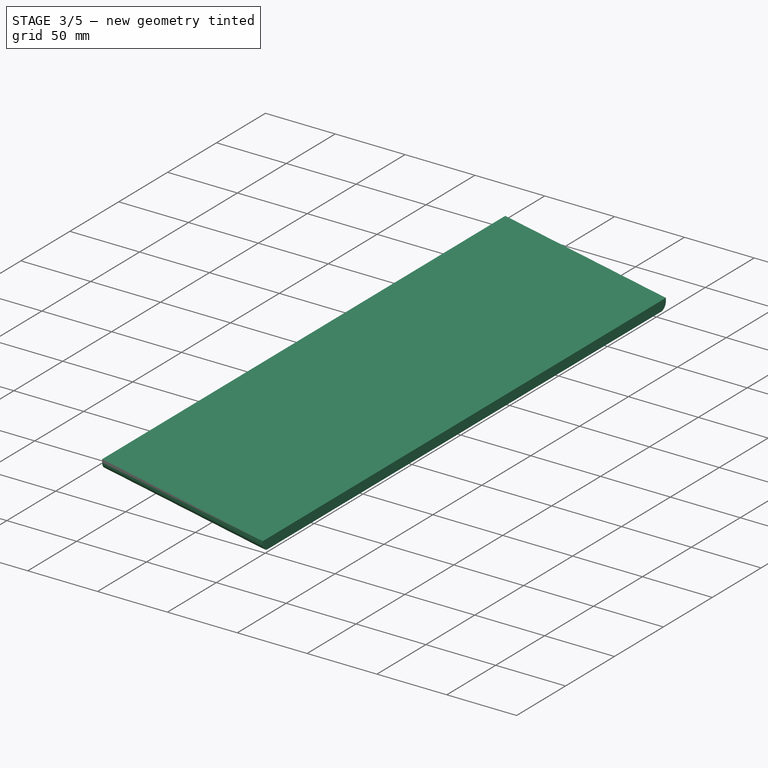
[diagram: stage 3 of 5 — iso view after this stage's code; geometry added in this stage tinted green]
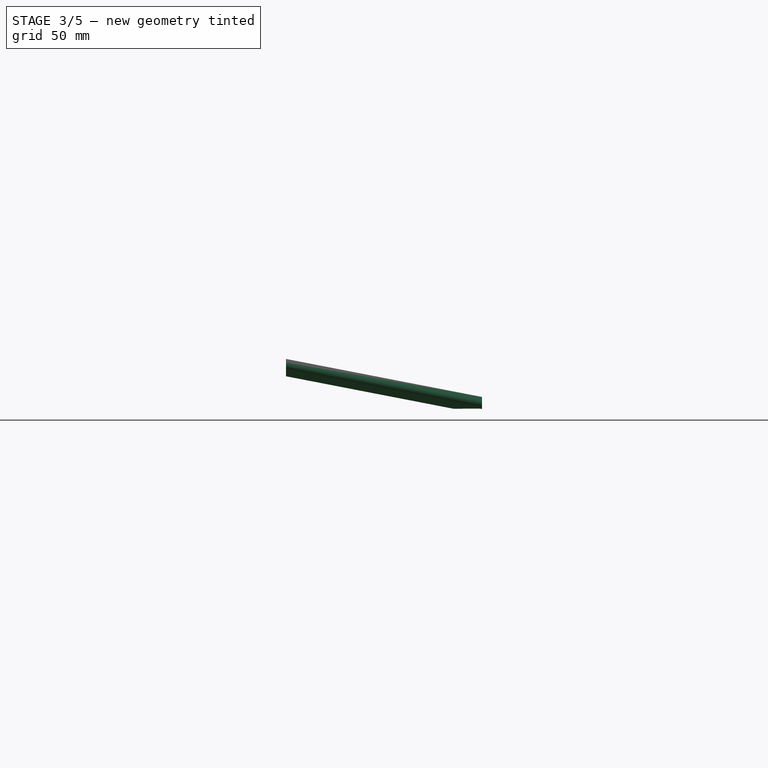
[diagram: stage 3 of 5 — front view after this stage's code; geometry added in this stage tinted green]
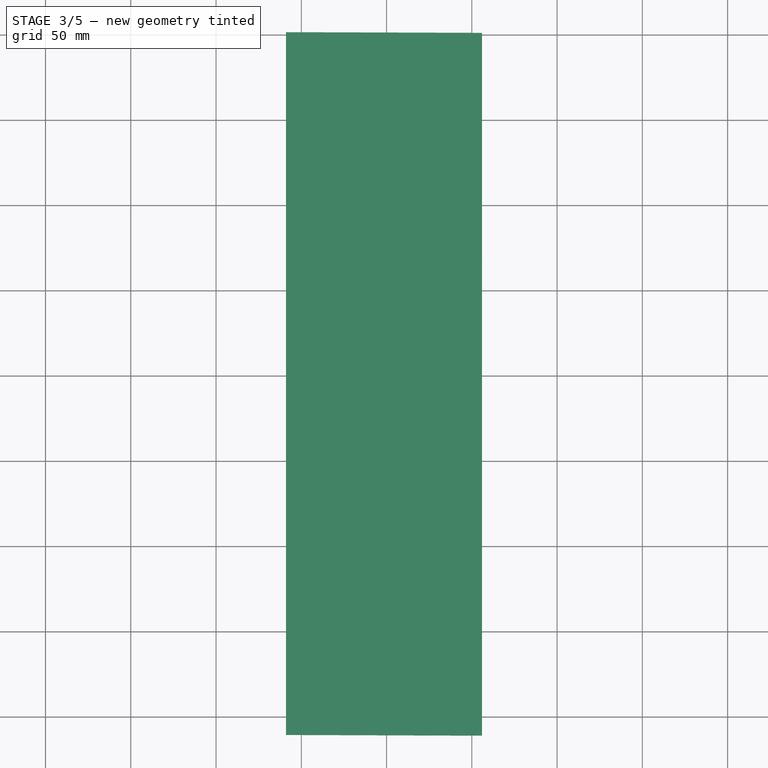
[diagram: stage 3 of 5 — top view after this stage's code; geometry added in this stage tinted green]
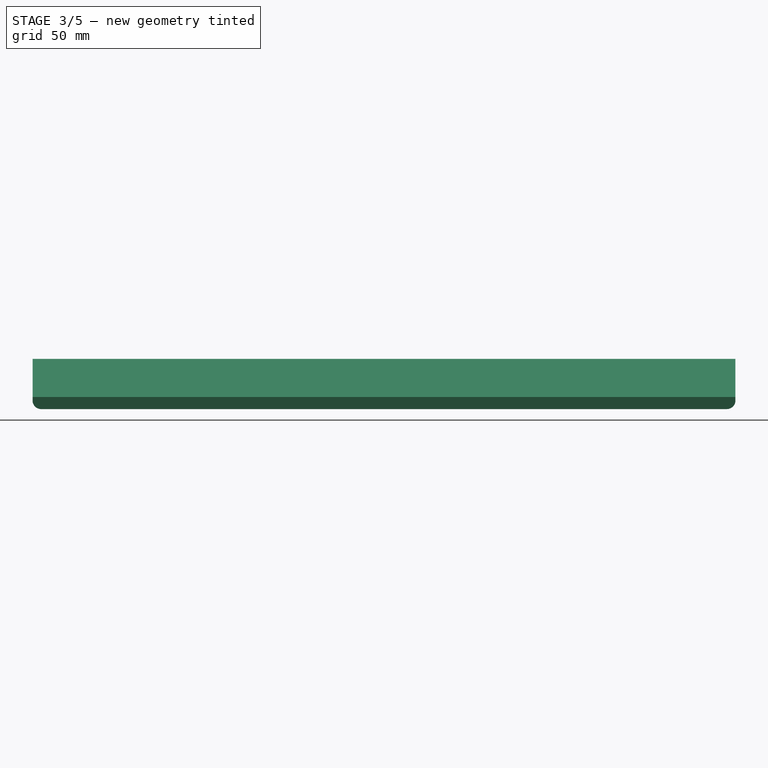
[diagram: stage 3 of 5 — right view after this stage's code; geometry added in this stage tinted green]
FEATURE [PartDesign::Fillet] Fillet
  Base = -> Pocket006 [Edge255,Edge291,Edge96,Edge86]
  BaseFeature = -> Pocket006
  Placement = pos=(0,0,0) rot=(1,0,0;1.5708rad)
  Radius = 1
  SupportTransform = false
  Suppressed = false
  UseAllEdges = false
FEATURE [PartDesign::SubShapeBinder] Binder006  label="Top of case front binder"
  BindCopyOnChange = 0
  BindMode = 0
  ClaimChildren = false
  Context = -> Part001 [Body001.Binder006.]
  Fuse = false
  MakeFace = true
  OffsetFill = false
  OffsetIntersection = false
  OffsetJoinType = 0
  OffsetOpenResult = false
  PartialLoad = false
  Relative = true
  Support = -> [Part[Body.Pad002.Face6]]
  _Version = 2
FEATURE [PartDesign::Plane] DatumPlane005  label="Case front datum plane"
  AttachmentSupport = -> [Binder006]
  Length = 469.432
  MapMode = 5
  Placement = pos=(156,0,0) rot=(0.57735,0.57735,0.57735;2.0944rad)
  ResizeMode = 0
  Width = 97.0238
FEATURE [Sketcher::SketchObject] Sketch010  label="Keyboard section sketch"
  ArcFitTolerance = 0
  AttachmentSupport = -> [DatumPlane005]
  ExternalGeometry = -> [Binder006]
  FullyConstrained = true
  MakeInternals = false
  MapMode = 5
  Placement = pos=(156,0,0) rot=(0.57735,0.57735,0.57735;2.0944rad)
  sketch-geometry (7):
    g0: LineSegment StartX=-411.1 StartY=15.2228 StartZ=0 EndX=1.1 EndY=15.2228 EndZ=0
    g1: LineSegment StartX=1.1 StartY=15.2228 StartZ=0 EndX=1.1 EndY=13.1228 EndZ=0
    g2: ArcOfCircle CenterX=-3.9 CenterY=13.1228 CenterZ=0 NormalX=0 NormalY=0 NormalZ=1 AngleXU=0 Radius=5 StartAngle=4.71239 EndAngle=6.28319
    g3: LineSegment StartX=-3.9 StartY=8.12284 StartZ=0 EndX=-406.1 EndY=8.12284 EndZ=0
    g4: ArcOfCircle CenterX=-406.1 CenterY=13.1228 CenterZ=0 NormalX=0 NormalY=0 NormalZ=1 AngleXU=0 Radius=5 StartAngle=3.14159 EndAngle=4.71239
    g5: LineSegment StartX=-411.1 StartY=13.1228 StartZ=0 EndX=-411.1 EndY=15.2228 EndZ=0
    g6: LineSegment [constr] StartX=-411.1 StartY=17.3228 StartZ=0 EndX=-411.1 EndY=15.2228 EndZ=0
  constraints (18):
    c: Coincident(g-3,g0)
    c: Coincident(g0,g-3)
    c: Coincident(g0,g1)
    c: Vertical(g1)
    c: Tangent(g1,g2) = 1.5708
    c: Coincident(g2,g3)
    c: Horizontal(g3)
    c: Tangent(g3,g4) = 1.5708
    c: Coincident(g4,g5)
    c: Coincident(g5,g0)
    c: Vertical(g5)
    c: Vertical(g-4,g4)
    c: Horizontal(g4,g4)
    c: Vertical(g-5,g2)
    c: Vertical(g2,g2)
    c: Coincident(g6,g-4)
    c: Coincident(g6,g0)
    c: Equal(g6,g5)
FEATURE [PartDesign::SubShapeBinder] Binder007  label="Slope binder"
  BindCopyOnChange = 0
  BindMode = 0
  ClaimChildren = false
  Context = -> Part001 [Body001.Binder007.]
  Fuse = false
  MakeFace = true
  OffsetFill = false
  OffsetIntersection = false
  OffsetJoinType = 0
  OffsetOpenResult = false
  PartialLoad = false
  Relative = true
  Support = -> [Part[Body.DatumLine001.]]
  _Version = 2
FEATURE [PartDesign::Pad] Pad004  label="Keyboard pad"
  Direction = (0.981705,2e-16,-0.190408)
  Length = 115
  Length2 = 10
  Placement = pos=(156,0,0) rot=(0.57735,0.57735,0.57735;2.0944rad)
  Profile = -> Sketch010
  ReferenceAxis = -> Binder007 [Edge1]
  Reversed = true
  Suppressed = false
  Type = 0
FEATURE [Sketcher::SketchObject] Sketch011  label="Bottom hidden extra thickness sketch 1"
  ArcFitTolerance = 0
  AttachmentSupport = -> [Pad004]
  ExternalGeometry = -> [Pad004]
  FullyConstrained = true
  MakeInternals = false
  MapMode = 5
  Placement = pos=(157.518,-1e-16,7.82834) rot=(0.70548,0.70548,-0.067785;3.27696rad)
  sketch-geometry (7):
    g0: ArcOfCircle CenterX=-401.1 CenterY=-7.74666 CenterZ=0 NormalX=0 NormalY=0 NormalZ=1 AngleXU=0 Radius=5 StartAngle=1.5708 EndAngle=3.14159
    g1: ArcOfCircle CenterX=-8.9 CenterY=-7.74666 CenterZ=0 NormalX=0 NormalY=0 NormalZ=1 AngleXU=0 Radius=5 StartAngle=0 EndAngle=1.5708
    g2: LineSegment StartX=-3.9 StartY=-7.74666 StartZ=0 EndX=-3.9 EndY=-118.69 EndZ=0
    g3: LineSegment StartX=-3.9 StartY=-118.69 StartZ=0 EndX=-406.1 EndY=-118.69 EndZ=0
    g4: LineSegment StartX=-406.1 StartY=-118.69 StartZ=0 EndX=-406.1 EndY=-7.74666 EndZ=0
    g5: GeomPoint [constr] X=-3.9 Y=-118.69 Z=0
    g6: LineSegment StartX=-401.1 StartY=-2.74666 StartZ=0 EndX=-8.9 EndY=-2.74666 EndZ=0
  constraints (19):
    c: Vertical(g2)
    c: Vertical(g4)
    c: Equal(g0,g1)
    c: Radius(g0) = 5
    c: Coincident(g3,g5)
    c: Coincident(g2,g3)
    c: Coincident(g2,g-4)
    c: Coincident(g3,g-3)
    c: Coincident(g4,g3)
    c: Coincident(g0,g4)
    c: Horizontal(g0,g0)
    c: Vertical(g0,g0)
    c: Coincident(g1,g2)
    c: Vertical(g1,g1)
    c: Coincident(g6,g0)
    c: Coincident(g6,g1)
    c: Horizontal(g6)
    c: Horizontal(g1,g1)
    c: DistanceY(g0,g-3) = 1.2
FEATURE [Sketcher::SketchObject] Sketch012  label="Bottom hidden extra thickness sketch 2"
  ArcFitTolerance = 0
  AttachmentOffset = pos=(0,0,3) rot=(0,0,1;0rad)
  AttachmentSupport = -> [Pad004]
  ExternalGeometry = -> [Sketch011]
  FullyConstrained = true
  MakeInternals = false
  MapMode = 5
  Placement = pos=(156.947,-1e-16,4.88322) rot=(0.70548,0.70548,-0.067785;3.27696rad)
  expr: Constraints[14] = 3 / tan(11)
  expr: Constraints[15] = 3 * tan(11)
  sketch-geometry (6):
    g0: ArcOfCircle CenterX=-396.1 CenterY=-23.1803 CenterZ=0 NormalX=0 NormalY=0 NormalZ=1 AngleXU=0 Radius=5 StartAngle=1.5708 EndAngle=3.14159
    g1: LineSegment StartX=-396.1 StartY=-18.1803 StartZ=0 EndX=-13.9 EndY=-18.1803 EndZ=0
    g2: ArcOfCircle CenterX=-13.9 CenterY=-23.1803 CenterZ=0 NormalX=0 NormalY=0 NormalZ=1 AngleXU=0 Radius=5 StartAngle=-4.18474e-11 EndAngle=1.5708
    g3: LineSegment StartX=-8.9 StartY=-23.1803 StartZ=0 EndX=-8.9 EndY=-118.107 EndZ=0
    g4: LineSegment StartX=-8.9 StartY=-118.107 StartZ=0 EndX=-401.1 EndY=-118.107 EndZ=0
    g5: LineSegment StartX=-401.1 StartY=-118.107 StartZ=0 EndX=-401.1 EndY=-23.1803 EndZ=0
  constraints (16):
    c: Tangent(g0,g1) = 1.5708
    c: Tangent(g1,g2) = 1.5708
    c: Tangent(g2,g3) = 1.5708
    c: Tangent(g5,g0) = 1.5708
    c: Horizontal(g1)
    c: Horizontal(g4)
    c: Vertical(g3)
    c: Vertical(g5)
    c: Equal(g0,g2)
    c: Equal(g0,g-3)
    c: Coincident(g4,g3)
    c: Coincident(g5,g4)
    c: Vertical(g0,g-3)
    c: Vertical(g-4,g2)
    c: DistanceY(g0,g-3) = 15.4337
    c: DistanceY(g-5,g4) = 0.583141
FEATURE [PartDesign::AdditiveLoft] AdditiveLoft  label="Bottom hidden extra thickness"
  BaseFeature = -> Pad004
  Closed = false
  Placement = pos=(156,0,0) rot=(0.57735,0.57735,0.57735;2.0944rad)
  Profile = -> Sketch011
  Ruled = false
  Sections = -> [Sketch012]
  Suppressed = false
FEATURE [Sketcher::SketchObject] Sketch015  label="Console bottom sketch"
  ArcFitTolerance = 0
  AttachmentSupport = -> [ShapeBinder]
  ExternalGeometry = -> [Pad005]
  FullyConstrained = true
  MakeInternals = false
  MapMode = 5
  Placement = pos=(156,-205,15.2228) rot=(0,0.707107,0.707107;3.14159rad)
  sketch-geometry (10):
    g0: LineSegment StartX=120.437 StartY=8.23871 StartZ=0 EndX=148.724 EndY=-6.22284 EndZ=0
    g1: ArcOfCircle CenterX=151 CenterY=-1.77092 CenterZ=0 NormalX=0 NormalY=0 NormalZ=1 AngleXU=0 Radius=5 StartAngle=4.23978 EndAngle=5.43157
    g2: LineSegment StartX=154.294 StartY=-5.53266 StartZ=0 EndX=122.624 EndY=10.6587 EndZ=0
    g3: ArcOfCircle CenterX=123.981 CenterY=13.3126 CenterZ=0 NormalX=0 NormalY=0 NormalZ=1 AngleXU=0 Radius=2.98062 StartAngle=3.14159 EndAngle=4.23978
    g4: ArcOfCircle CenterX=122.706 CenterY=12.6768 CenterZ=0 NormalX=0 NormalY=0 NormalZ=1 AngleXU=0 Radius=4.9845 StartAngle=3.14159 EndAngle=4.23978
    g5: LineSegment [constr] StartX=151 StartY=-1.77092 StartZ=0 EndX=148.724 EndY=-6.22284 EndZ=0
    g6: LineSegment StartX=117.722 StartY=12.6768 StartZ=0 EndX=117.722 EndY=15.9633 EndZ=0
    g7: LineSegment StartX=121 StartY=13.3126 StartZ=0 EndX=121 EndY=16.5991 EndZ=0
    g8: GeomPoint [constr] X=150.158 Y=-3.41813 Z=0
    g9: LineSegment StartX=117.722 StartY=15.9633 StartZ=0 EndX=121 EndY=16.5991 EndZ=0
  constraints (23):
    c: Coincident(g-3,g0)
    c: Coincident(g0,g-3)
    c: Tangent(g0,g1) = -1.5708
    c: Coincident(g1,g2)
    c: Tangent(g2,g3) = 1.5708
    c: Coincident(g3,g-4)
    c: PointOnObject(g4,g-4)
    c: Parallel(g2,g0)
    c: Coincident(g5,g1)
    c: Coincident(g5,g0)
    c: Vertical(g6)
    c: Tangent(g4,g0) = -1.5708
    c: Radius(g1) = 5
    c: Vertical(g7)
    c: Tangent(g7,g3) = 1.5708
    c: PointOnObject(g8,g5)
    c: PointOnObject(g8,g2)
    c: Distance(g0,g8) = 3.15
    c: PointOnObject(g7,g-5)
    c: PointOnObject(g6,g-5)
    c: Coincident(g9,g6)
    c: Coincident(g9,g7)
    c: Tangent(g6,g4) = 1.5708
FEATURE [PartDesign::SubShapeBinder] Binder012  label="Plate binder"
  BindCopyOnChange = 0
  BindMode = 0
  ClaimChildren = false
  Context = -> Part001 [Body001.Binder012.]
  Fuse = false
  MakeFace = true
  OffsetFill = false
  OffsetIntersection = false
  OffsetJoinType = 0
  OffsetOpenResult = false
  PartialLoad = false
  Relative = true
  Support = -> [Part002[Part__Feature001.]]
  _Version = 2
FEATURE [PartDesign::SubShapeBinder] Binder013  label="Screw holes binder"
  BindCopyOnChange = 0
  BindMode = 0
  ClaimChildren = false
  Context = -> Part001 [Body001.Binder013.]
  Fuse = false
  MakeFace = true
  OffsetFill = false
  OffsetIntersection = false
  OffsetJoinType = 0
  OffsetOpenResult = false
  PartialLoad = false
  Relative = true
  Support = -> [Part[Body.Pocket005.Sketch008.]]
  _Version = 2
FEATURE [PartDesign::Plane] DatumPlane009  label="Base horizontal plane"
  AttachmentSupport = -> [AdditiveLoft]
  Length = 237.22
  MapMode = 45
  Placement = pos=(146.995,-205,8.34813) rot=(0,-1,0;0.000408rad)
  ResizeMode = 0
  Width = 492.294
FEATURE [Sketcher::SketchObject] Sketch020  label="Feet sketch"
  ArcFitTolerance = 0
  AttachmentSupport = -> [DatumPlane009]
  FullyConstrained = false
  MakeInternals = false
  MapMode = 5
  Placement = pos=(146.995,-205,8.34813) rot=(0,-1,0;0.000408rad)
  sketch-geometry (32):
    g0: LineSegment StartX=1.5 StartY=-180 StartZ=0 EndX=1.5 EndY=-150 EndZ=0
    g1: LineSegment StartX=1.5 StartY=-150 StartZ=0 EndX=5.5 EndY=-150 EndZ=0
    g2: LineSegment StartX=5.5 StartY=-150 StartZ=0 EndX=5.5 EndY=-180 EndZ=0
    g3: LineSegment StartX=5.5 StartY=-180 StartZ=0 EndX=1.5 EndY=-180 EndZ=0
    g4: LineSegment StartX=1.5 StartY=8 StartZ=0 EndX=1.5 EndY=28 EndZ=0
    g5: LineSegment StartX=1.5 StartY=28 StartZ=0 EndX=5.5 EndY=28 EndZ=0
    g6: LineSegment StartX=5.5 StartY=28 StartZ=0 EndX=5.5 EndY=8 EndZ=0
    g7: LineSegment StartX=5.5 StartY=8 StartZ=0 EndX=1.5 EndY=8 EndZ=0
    g8: LineSegment StartX=5.5 StartY=-28 StartZ=0 EndX=5.5 EndY=-8 EndZ=0
    g9: LineSegment StartX=5.5 StartY=-8 StartZ=0 EndX=1.5 EndY=-8 EndZ=0
    g10: LineSegment StartX=1.5 StartY=-8 StartZ=0 EndX=1.5 EndY=-28 EndZ=0
    g11: LineSegment StartX=1.5 StartY=-28 StartZ=0 EndX=5.5 EndY=-28 EndZ=0
    g12: LineSegment StartX=5.5 StartY=180 StartZ=0 EndX=5.5 EndY=150 EndZ=0
    g13: LineSegment StartX=5.5 StartY=150 StartZ=0 EndX=1.5 EndY=150 EndZ=0
    g14: LineSegment StartX=1.5 StartY=150 StartZ=0 EndX=1.5 EndY=180 EndZ=0
    g15: LineSegment StartX=1.5 StartY=180 StartZ=0 EndX=5.5 EndY=180 EndZ=0
    g16: LineSegment StartX=-143.152 StartY=-160 StartZ=0 EndX=-143.152 EndY=-180 EndZ=0
    g17: LineSegment StartX=-143.152 StartY=-180 StartZ=0 EndX=-140.152 EndY=-180 EndZ=0
    g18: LineSegment StartX=-140.152 StartY=-180 StartZ=0 EndX=-140.152 EndY=-160 EndZ=0
    g19: LineSegment StartX=-140.152 StartY=-160 StartZ=0 EndX=-143.152 EndY=-160 EndZ=0
    g20: LineSegment StartX=-140.152 StartY=10 StartZ=0 EndX=-140.152 EndY=-10 EndZ=0
    g21: LineSegment StartX=-140.152 StartY=-10 StartZ=0 EndX=-143.152 EndY=-10 EndZ=0
    g22: LineSegment StartX=-143.152 StartY=-10 StartZ=0 EndX=-143.152 EndY=10 EndZ=0
    g23: LineSegment StartX=-143.152 StartY=10 StartZ=0 EndX=-140.152 EndY=10 EndZ=0
    g24: LineSegment StartX=-140.152 StartY=180 StartZ=0 EndX=-140.152 EndY=160 EndZ=0
    g25: LineSegment StartX=-140.152 StartY=160 StartZ=0 EndX=-143.152 EndY=160 EndZ=0
    g26: LineSegment StartX=-143.152 StartY=160 StartZ=0 EndX=-143.152 EndY=180 EndZ=0
    g27: LineSegment StartX=-143.152 StartY=180 StartZ=0 EndX=-140.152 EndY=180 EndZ=0
    g28: GeomPoint [constr] X=-141.652 Y=202.377 Z=0
    g29: GeomPoint [constr] X=-141.652 Y=-202.377 Z=0
    g30: LineSegment [constr] StartX=-141.652 StartY=-202.377 StartZ=0 EndX=-141.652 EndY=202.377 EndZ=0
    g31: GeomPoint [constr] X=-141.652 Y=3.1e-15 Z=0
  constraints (84):
    c: Coincident(g0,g1)
    c: Coincident(g1,g2)
    c: Coincident(g2,g3)
    c: Coincident(g3,g0)
    c: Horizontal(g1)
    c: Horizontal(g3)
    c: Vertical(g0)
    c: Vertical(g2)
    c: Coincident(g4,g5)
    c: Coincident(g5,g6)
    c: Coincident(g6,g7)
    c: Coincident(g7,g4)
    c: Horizontal(g5)
    c: Horizontal(g7)
    c: Vertical(g4)
    c: Vertical(g6)
    c: Coincident(g8,g9)
    c: Coincident(g9,g10)
    c: Coincident(g10,g11)
    c: Coincident(g11,g8)
    c: Horizontal(g9)
    c: Horizontal(g11)
    c: Vertical(g8)
    c: Vertical(g10)
    c: Coincident(g12,g13)
    c: Coincident(g13,g14)
    c: Coincident(g14,g15)
    c: Coincident(g15,g12)
    c: Horizontal(g13)
    c: Horizontal(g15)
    c: Vertical(g12)
    c: Vertical(g14)
    c: Vertical(g0,g4)
    c: Vertical(g4,g9)
    c: Vertical(g2,g5)
    c: Vertical(g6,g8)
    c: Vertical(g8,g12)
    c: Equal(g6,g8)
    c: Equal(g2,g12)
    c: DistanceX(g3,g3) = 4
    c: DistanceY(g2,g2) = 30
    c: DistanceY(g6,g6) = 20
    c: DistanceY(g-1,g4) = 8
    c: DistanceY(g9,g-1) = 8
    c: Coincident(g16,g17)
    c: Coincident(g17,g18)
    c: Coincident(g18,g19)
    c: Coincident(g19,g16)
    c: Horizontal(g17)
    c: Horizontal(g19)
    c: Vertical(g16)
    c: Vertical(g18)
    c: Coincident(g20,g21)
    c: Coincident(g21,g22)
    c: Coincident(g22,g23)
    c: Coincident(g23,g20)
    c: Horizontal(g21)
    c: Horizontal(g23)
    c: Vertical(g22)
    c: Coincident(g24,g25)
    c: Coincident(g25,g26)
    c: Coincident(g26,g27)
    c: Coincident(g27,g24)
    c: Horizontal(g25)
    c: Horizontal(g27)
    c: Vertical(g24)
    c: Vertical(g26)
    c: DistanceX(g21,g21) = 3
    c: Vertical(g16,g21)
    c: Vertical(g22,g25)
    c: Vertical(g24,g20)
    c: Equal(g16,g22)
    c: Equal(g22,g26)
    c: DistanceY(g16,g16) = 20
    c: DistanceX(g-1,g9) = 1.5
    c: Symmetric(g13,g0,g-1)
    c: Symmetric(g20,g20,g-1)
    c: Symmetric(g18,g24,g-1)
    c: DistanceY(g-1,g12) = 150
    c: Coincident(g30,g29)
    c: Coincident(g30,g28)
    c: PointOnObject(g31,g30)
    c: Symmetric(g22,g20,g31)
    c: Horizontal(g14,g24)
FEATURE [Sketcher::SketchObject] Sketch021  label="Pi notch sketch"
  ArcFitTolerance = 0
  AttachmentSupport = -> [Fillet]
  ExternalGeometry = -> [Fillet]
  FullyConstrained = true
  MakeInternals = false
  MapMode = 5
  Placement = pos=(3.2,0,1.2e-15) rot=(0.707107,0,0.707107;3.14159rad)
  sketch-geometry (5):
    g0: LineSegment StartX=38.0892 StartY=399.706 StartZ=0 EndX=36.0892 EndY=399.706 EndZ=0
    g1: LineSegment StartX=36.0892 StartY=399.706 StartZ=0 EndX=36.0892 EndY=373.706 EndZ=0
    g2: LineSegment StartX=36.0892 StartY=373.706 StartZ=0 EndX=38.0892 EndY=373.706 EndZ=0
    g3: LineSegment StartX=38.0892 StartY=373.706 StartZ=0 EndX=38.0892 EndY=399.706 EndZ=0
    g4: GeomPoint [constr] X=38.0892 Y=386.706 Z=0
  constraints (12):
    c: Coincident(g0,g1)
    c: Coincident(g1,g2)
    c: Coincident(g2,g3)
    c: Coincident(g3,g0)
    c: Horizontal(g0)
    c: Horizontal(g2)
    c: Vertical(g1)
    c: DistanceX(g0,g0) = 2
    c: DistanceY(g1,g1) = 26
    c: Vertical(g3)
    c: Symmetric(g3,g3,g4)
    c: Symmetric(g-3,g-4,g4)
FEATURE [PartDesign::Pocket] Pocket011  label="Pi notch"
  BaseFeature = -> Fillet
  Direction = (-0.981627,1e-16,0.190809)
  Length = 1.3
  Length2 = 5
  Placement = pos=(0,0,0) rot=(1,0,0;1.5708rad)
  Profile = -> Sketch021
  ReferenceAxis = -> Fillet [Edge344]
  Suppressed = false
  Type = 0
FEATURE [Sketcher::SketchObject] Sketch022  label="Screen embed sketch"
  ArcFitTolerance = 0
  AttachmentSupport = -> [Pocket011]
  ExternalGeometry = -> [Pocket011]
  FullyConstrained = true
  MakeInternals = false
  MapMode = 5
  Placement = pos=(9.72392,2.25e-14,50.1344) rot=(0.995416,0,-0.095643;3.14159rad)
  sketch-geometry (8):
    g0: LineSegment StartX=-3.50172 StartY=77.4333 StartZ=0 EndX=10.4983 EndY=77.4333 EndZ=0
    g1: LineSegment StartX=10.4983 StartY=77.4333 StartZ=0 EndX=10.4983 EndY=32.4333 EndZ=0
    g2: LineSegment StartX=10.4983 StartY=32.4333 StartZ=0 EndX=-3.50172 EndY=32.4333 EndZ=0
    g3: LineSegment StartX=-3.50172 StartY=32.4333 StartZ=0 EndX=-3.50172 EndY=77.4333 EndZ=0
    g4: GeomPoint [constr] X=3.49828 Y=77.4333 Z=0
    g5: GeomPoint [constr] X=10.4983 Y=54.9333 Z=0
    g6: GeomPoint [constr] X=3.49828 Y=67.9333 Z=0
    g7: GeomPoint [constr] X=8.49828 Y=54.9333 Z=0
  constraints (16):
    c: Coincident(g0,g1)
    c: Coincident(g1,g2)
    c: Coincident(g2,g3)
    c: Coincident(g3,g0)
    c: Horizontal(g0)
    c: Horizontal(g2)
    c: Vertical(g1)
    c: Vertical(g3)
    c: DistanceY(g3,g3) = 45
    c: DistanceX(g0,g0) = 14
    c: Symmetric(g0,g0,g4)
    c: Symmetric(g1,g1,g5)
    c: Symmetric(g-3,g-3,g6)
    c: Symmetric(g-3,g-4,g7)
    c: Horizontal(g7,g5)
    c: Vertical(g6,g4)
FEATURE [PartDesign::Pocket] Pocket012  label="Screen embed"
  BaseFeature = -> Pocket011
  Direction = (0.190408,0,0.981705)
  Length = 1.2
  Length2 = 5
  Placement = pos=(0,0,0) rot=(1,0,0;1.5708rad)
  Profile = -> Sketch022
  ReferenceAxis = -> Sketch022 [N_Axis]
  Suppressed = false
  Type = 0
FEATURE [PartDesign::Body] Body001  label="EnclosureBottomBody"
  AllowCompound = false
  Group = -> [Binder006,DatumPlane005,Sketch010,Pad004,Binder007,Sketch011,Sketch012,AdditiveLoft,DatumPlane006,Sketch013,Binder009,Binder010,Binder011,Sketch014,ShapeBinder,Sketch015,Pad005,Pad006,Pad007,Pocket007,DatumPlane007,DatumPlane008,Fillet001,Sketch016,Binder012,Pad008,Binder013,Sketch017,Pocket008,Sketch018,Pad009,Fillet002,Sketch019,Pocket009,DatumPlane009,Sketch020,Pocket010,Binder014,Binder015,+3 more]
  Origin = -> Origin004
  Tip = -> Pocket013
FEATURE [App::Part] Part001  label="EnclosureBottom"
  Group = -> [Body001]
  Origin = -> Origin003
FEATURE [Sketcher::SketchObject] Sketch024
  ArcFitTolerance = 1e-06
  AttachmentSupport = -> [Pocket012]
  ExternalGeometry = -> [Pocket012]
  FullyConstrained = true
  MakeInternals = false
  MapMode = 5
  Placement = pos=(9.72392,2.25e-14,50.1344) rot=(0.995416,0,-0.095643;3.14159rad)
  sketch-geometry (2):
    g0: Circle CenterX=3.24828 CenterY=25.9333 CenterZ=0 NormalX=0 NormalY=0 NormalZ=1 AngleXU=0 Radius=2
    g1: Circle CenterX=3.24828 CenterY=25.9333 CenterZ=0 NormalX=0 NormalY=0 NormalZ=1 AngleXU=0 Radius=4
  constraints (4):
    c: Coincident(g0,g-3)
    c: Equal(g-3,g0)
    c: Coincident(g1,g0)
    c: Diameter(g1) = 8
FEATURE [PartDesign::Pad] Pad011
  BaseFeature = -> Pocket012
  Direction = (-0.190408,0,-0.981705)
  Length = 3.5
  Length2 = 10
  Placement = pos=(0,0,0) rot=(1,0,0;1.5708rad)
  Profile = -> Sketch024
  ReferenceAxis = -> Sketch024 [N_Axis]
  Suppressed = false
  Type = 0
FEATURE [PartDesign::Body] Body  label="EnclosureTopBody"
  AllowCompound = false
  Group = -> [Sketch,Pad,Draft,DatumPlane,Sketch001,DatumLine,DatumPoint,DatumLine001,DatumPoint001,Sketch002,Pad001,Pad002,DatumPlane001,DatumPlane002,Sketch003,Pocket,Pocket001,DatumPlane003,Sketch004,Pocket002,Binder,Sketch005,Pocket003,Sketch006,Binder001,DatumLine002,DatumLine003,DatumPoint002,DatumPoint003,Pocket004,Chamfer,DatumLine004,Sketch007,Pad003,Sketch008,Pocket005,DatumPlane004,Sketch009,+9 more]
  Origin = -> Origin001
  Tip = -> Pad011
FEATURE [App::Part] Part  label="EnclosureTop"
  Group = -> [Body]
  Origin = -> Origin
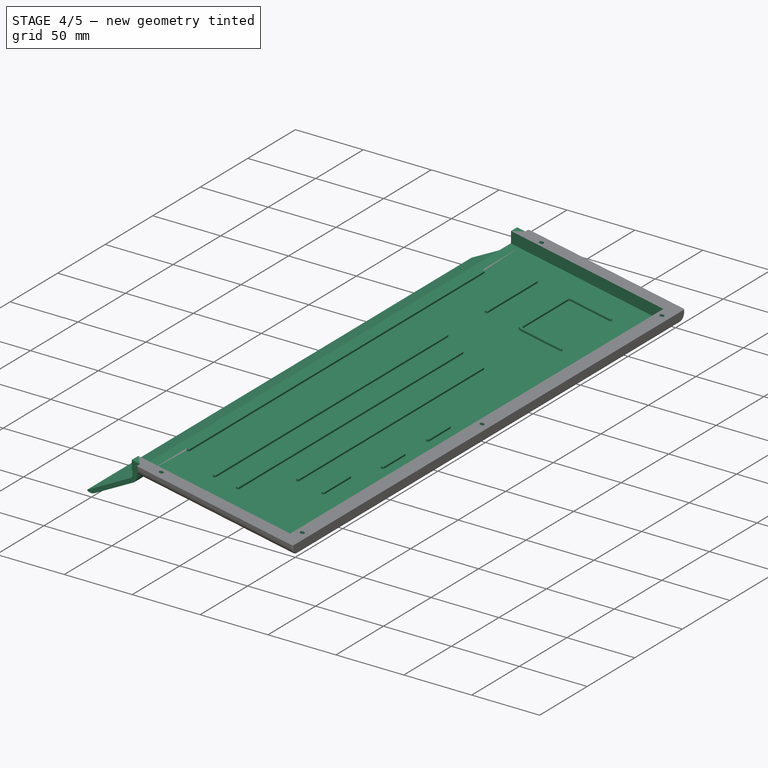
[diagram: stage 4 of 5 — iso view after this stage's code; geometry added in this stage tinted green]
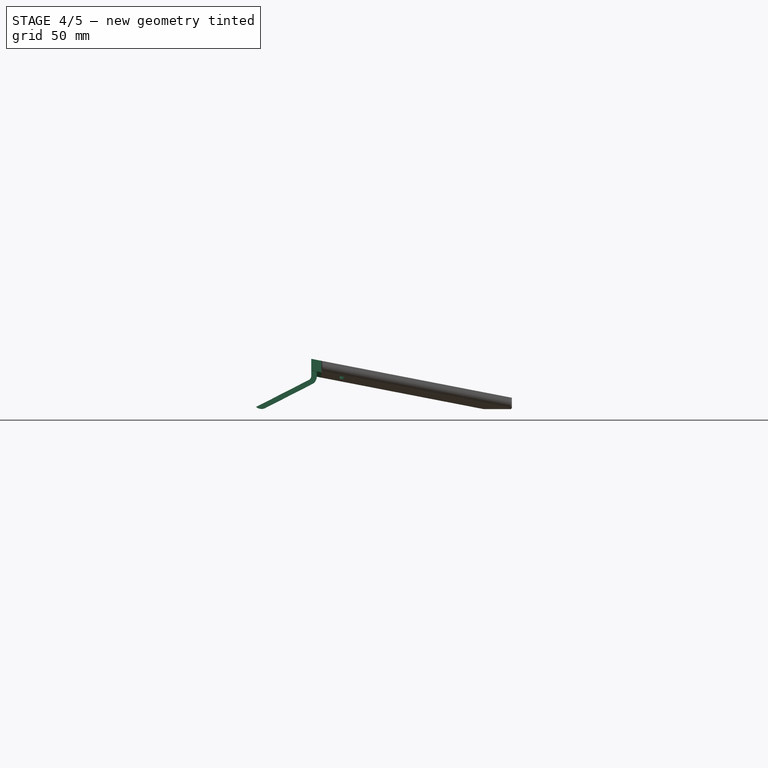
[diagram: stage 4 of 5 — front view after this stage's code; geometry added in this stage tinted green]
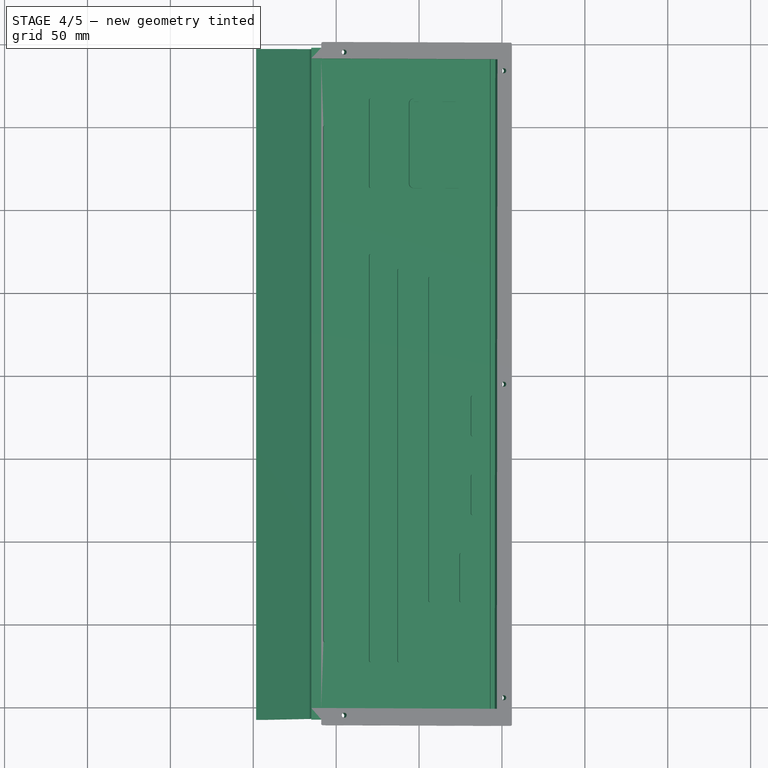
[diagram: stage 4 of 5 — top view after this stage's code; geometry added in this stage tinted green]
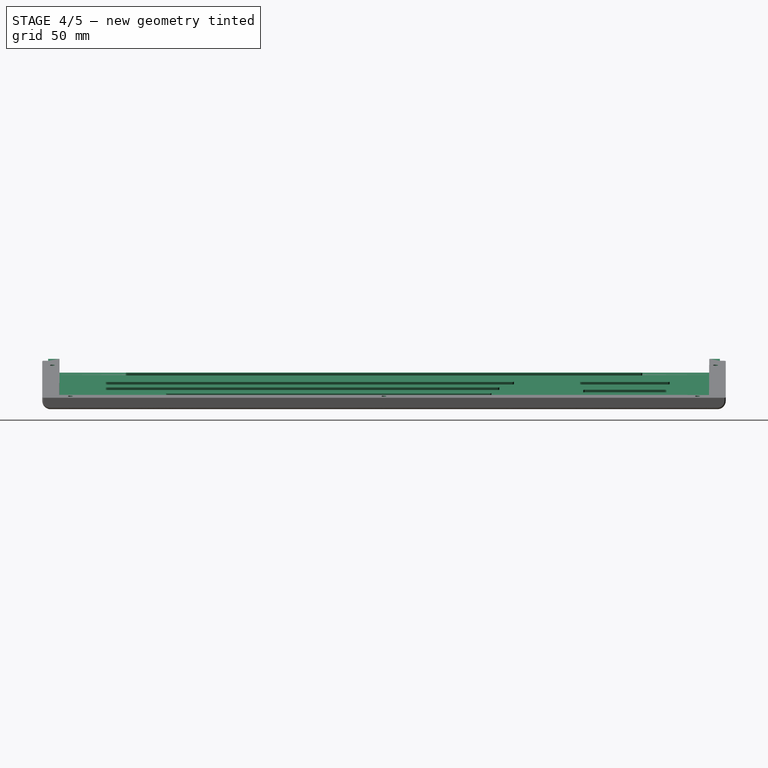
[diagram: stage 4 of 5 — right view after this stage's code; geometry added in this stage tinted green]
FEATURE [PartDesign::Plane] DatumPlane006  label="PCB bottom surface plane"
  AttachmentSupport = -> [Binder001]
  Length = 247.866
  MapMode = 45
  Placement = pos=(73.105,-204.804,24.5011) rot=(-0.00048,0.999987,-0.004986;0.191989rad)
  ResizeMode = 0
  Width = 493.902
FEATURE [PartDesign::SubShapeBinder] Binder009  label="PCB bottom offfset outline"
  BindCopyOnChange = 0
  BindMode = 0
  ClaimChildren = false
  Context = -> Part001 [Body001.Binder009.]
  Fuse = false
  MakeFace = true
  OffsetFill = false
  OffsetIntersection = false
  OffsetJoinType = 0
  OffsetOpenResult = false
  PartialLoad = false
  Relative = true
  Support = -> [Offset2D001]
  _Version = 2
FEATURE [PartDesign::SubShapeBinder] Binder010  label="PCB bottom binder"
  BindCopyOnChange = 0
  BindMode = 0
  ClaimChildren = false
  Context = -> Part001 [Body001.Binder010.]
  Fuse = false
  MakeFace = true
  OffsetFill = false
  OffsetIntersection = false
  OffsetJoinType = 0
  OffsetOpenResult = false
  PartialLoad = false
  Relative = true
  Support = -> [DecenTKL_1[Part__Feature.Face4]]
  _Version = 2
FEATURE [Sketcher::SketchObject] Sketch013  label="PCB footprint sketch"
  ArcFitTolerance = 0
  AttachmentSupport = -> [DatumPlane006]
  ExternalGeometry = -> [Binder010]
  FullyConstrained = true
  MakeInternals = false
  MapMode = 5
  Placement = pos=(73.105,-204.804,24.5011) rot=(-0.00048,0.999987,-0.004986;0.191989rad)
  sketch-geometry (4):
    g0: LineSegment StartX=-74.0756 StartY=195.928 StartZ=0 EndX=74.0756 EndY=195.928 EndZ=0
    g1: LineSegment StartX=74.0756 StartY=195.928 StartZ=0 EndX=74.0756 EndY=-195.928 EndZ=0
    g2: LineSegment StartX=74.0756 StartY=-195.928 StartZ=0 EndX=-74.0756 EndY=-195.928 EndZ=0
    g3: LineSegment StartX=-74.0756 StartY=-195.928 StartZ=0 EndX=-74.0756 EndY=195.928 EndZ=0
  constraints (11):
    c: Coincident(g0,g1)
    c: Coincident(g1,g2)
    c: Coincident(g2,g3)
    c: Coincident(g3,g0)
    c: Horizontal(g0)
    c: Horizontal(g2)
    c: Vertical(g1)
    c: Vertical(g3)
    c: Symmetric(g0,g2,g-1)
    c: DistanceY(g0,g-3) = -0.75
    c: DistanceX(g-4,g0) = 0.3
FEATURE [Part::Offset2D] Offset2D001  label="PCB top offset outline"
  Fill = false
  Intersection = false
  Join = 0
  Mode = 1
  SelfIntersection = false
  Source = -> Sketch013
  Value = 1.5
FEATURE [PartDesign::SubShapeBinder] Binder011  label="Top console to keyboard binder"
  BindCopyOnChange = 0
  BindMode = 0
  ClaimChildren = false
  Context = -> Part001 [Body001.Binder011.]
  Fuse = false
  MakeFace = true
  OffsetFill = false
  OffsetIntersection = false
  OffsetJoinType = 0
  OffsetOpenResult = false
  PartialLoad = false
  Relative = true
  Support = -> [Part[Body.Pad001.Face17]]
  _Version = 2
FEATURE [Sketcher::SketchObject] Sketch014  label="Bottom console to keyboard sketch"
  ArcFitTolerance = 0
  AttachmentSupport = -> [AdditiveLoft]
  ExternalGeometry = -> [Binder011,AdditiveLoft]
  FullyConstrained = true
  MakeInternals = false
  MapMode = 5
  Placement = pos=(41,0,0) rot=(0.57735,0.57735,-0.57735;4.18879rad)
  sketch-geometry (8):
    g0: LineSegment StartX=-407.6 StartY=-37.5279 StartZ=0 EndX=-407.6 EndY=-30.6582 EndZ=0
    g1: LineSegment StartX=-401.1 StartY=-27.3717 StartZ=0 EndX=-8.9 EndY=-27.3717 EndZ=0
    g2: LineSegment StartX=-2.4 StartY=-30.6582 StartZ=0 EndX=-2.4 EndY=-37.5279 EndZ=0
    g3: LineSegment StartX=-2.4 StartY=-37.5279 StartZ=0 EndX=-407.6 EndY=-37.5279 EndZ=0
    g4: ArcOfCircle CenterX=-406.1 CenterY=-35.4279 CenterZ=0 NormalX=0 NormalY=0 NormalZ=1 AngleXU=0 Radius=5 StartAngle=1.5708 EndAngle=1.87549
    g5: LineSegment StartX=-406.1 StartY=-30.4279 StartZ=0 EndX=-401.1 EndY=-27.3717 EndZ=0
    g6: LineSegment StartX=-8.9 StartY=-27.3717 StartZ=0 EndX=-3.9 EndY=-30.4279 EndZ=0
    g7: ArcOfCircle CenterX=-3.9 CenterY=-35.4279 CenterZ=0 NormalX=0 NormalY=0 NormalZ=1 AngleXU=0 Radius=5 StartAngle=1.2661 EndAngle=1.5708
  constraints (18):
    c: Vertical(g0)
    c: Coincident(g1,g-5)
    c: Vertical(g2)
    c: Coincident(g2,g3)
    c: Coincident(g2,g-3)
    c: Coincident(g3,g-4)
    c: Coincident(g0,g3)
    c: Coincident(g4,g-5)
    c: Coincident(g0,g4)
    c: Coincident(g4,g-7)
    c: Coincident(g5,g4)
    c: Coincident(g5,g1)
    c: Coincident(g6,g1)
    c: Coincident(g6,g-8)
    c: Coincident(g7,g-8)
    c: Coincident(g7,g6)
    c: Coincident(g7,g2)
    c: Coincident(g1,g-6)
FEATURE [PartDesign::ShapeBinder] ShapeBinder  label="Middle plane binder"
  Placement = pos=(156,-205,15.2228) rot=(0,0.707107,0.707107;3.14159rad)
  Support = -> [DatumPlane004]
  TraceSupport = false
FEATURE [PartDesign::Pad] Pad005  label="Bottom console to keyboard"
  BaseFeature = -> AdditiveLoft
  Direction = (0.981705,2e-16,-0.190408)
  Length = 6
  Length2 = 10
  Placement = pos=(156,0,0) rot=(0.57735,0.57735,0.57735;2.0944rad)
  Profile = -> Sketch014
  ReferenceAxis = -> Binder007 [Edge1]
  Refine = true
  Reversed = true
  Suppressed = false
  Type = 0
FEATURE [PartDesign::SubShapeBinder] Binder014  label="Console section inner left side binder"
  BindCopyOnChange = 0
  BindMode = 0
  ClaimChildren = false
  Context = -> Part001 [Body001.Binder014.]
  Fuse = false
  MakeFace = true
  OffsetFill = false
  OffsetIntersection = false
  OffsetJoinType = 0
  OffsetOpenResult = false
  PartialLoad = false
  Relative = true
  Support = -> [Part[Body.Pocket001.Face8]]
  _Version = 2
FEATURE [PartDesign::Pad] Pad006  label="Console bottom to left side"
  BaseFeature = -> Pad005
  Direction = (0,1,-2e-16)
  Length = 10
  Length2 = 10
  Placement = pos=(156,0,0) rot=(0.57735,0.57735,0.57735;2.0944rad)
  Profile = -> Sketch015
  ReferenceAxis = -> Sketch015 [N_Axis]
  Suppressed = false
  Type = 3
  UpToFace = -> Binder014 [Face1]
FEATURE [PartDesign::Plane] DatumPlane007  label="Left side plane"
  AttachmentSupport = -> [Binder014]
  Length = 205.239
  MapMode = 5
  Placement = pos=(1.35411,-407.423,6.98148) rot=(-0.001165,0.713138,0.701023;3.14396rad)
  ResizeMode = 0
  Width = 93.9419
FEATURE [PartDesign::SubShapeBinder] Binder015  label="Console section inner right side binder"
  BindCopyOnChange = 0
  BindMode = 0
  ClaimChildren = false
  Context = -> Part001 [Body001.Binder015.]
  Fuse = false
  MakeFace = true
  OffsetFill = false
  OffsetIntersection = false
  OffsetJoinType = 0
  OffsetOpenResult = false
  PartialLoad = false
  Relative = true
  Support = -> [Part[Body.Pocket001.Face17]]
  _Version = 2
FEATURE [PartDesign::Pad] Pad007  label="Console bottom to right side"
  BaseFeature = -> Pad006
  Direction = (0,1,-2e-16)
  Length = 10
  Length2 = 10
  Placement = pos=(156,0,0) rot=(0.57735,0.57735,0.57735;2.0944rad)
  Profile = -> Sketch015
  ReferenceAxis = -> Sketch015 [N_Axis]
  Refine = true
  Suppressed = false
  Type = 3
  UpToFace = -> Binder015 [Face1]
FEATURE [PartDesign::Pocket] Pocket007  label="PCB pocket"
  BaseFeature = -> Pad007
  Direction = (-0.190809,0,-0.981627)
  Length = 7
  Length2 = 1.5
  Placement = pos=(156,0,0) rot=(0.57735,0.57735,0.57735;2.0944rad)
  Profile = -> Sketch013
  Refine = true
  Reversed = true
  Suppressed = false
  Type = 4
FEATURE [PartDesign::Plane] DatumPlane008  label="Right side plane"
  AttachmentSupport = -> [Binder015]
  Length = 205.239
  MapMode = 5
  Placement = pos=(-0.00815113,-2.45251,-0.0420255) rot=(0.999997,-0.001633,-0.001662;1.58793rad)
  ResizeMode = 0
  Width = 93.9419
FEATURE [PartDesign::Fillet] Fillet001  label="Bottom fillet"
  Base = -> Pocket007 [Edge21,Edge28,Edge20]
  BaseFeature = -> Pocket007
  Placement = pos=(156,0,0) rot=(0.57735,0.57735,0.57735;2.0944rad)
  Radius = 1
  SupportTransform = false
  Suppressed = false
  UseAllEdges = false
FEATURE [Sketcher::SketchObject] Sketch016  label="PCB support sketch"
  ArcFitTolerance = 0
  AttachmentSupport = -> [Pocket007]
  ExternalGeometry = -> [Binder012,Binder010,Pocket007]
  FullyConstrained = true
  MakeInternals = false
  MapMode = 5
  Placement = pos=(157.285,-5e-16,6.61008) rot=(-0.095409,0.095409,-0.990855;1.57998rad)
  sketch-geometry (49):
    g0: ArcOfCircle CenterX=212.862 CenterY=-25.5807 CenterZ=0 NormalX=0 NormalY=0 NormalZ=1 AngleXU=0 Radius=1 StartAngle=1.5708 EndAngle=4.71239
    g1: ArcOfCircle CenterX=235.362 CenterY=-25.5807 CenterZ=0 NormalX=0 NormalY=0 NormalZ=1 AngleXU=0 Radius=1 StartAngle=4.71239 EndAngle=7.85398
    g2: LineSegment StartX=212.862 StartY=-26.5807 StartZ=0 EndX=235.362 EndY=-26.5807 EndZ=0
    g3: LineSegment StartX=235.362 StartY=-24.5807 StartZ=0 EndX=212.862 EndY=-24.5807 EndZ=0
    g4: ArcOfCircle CenterX=260.362 CenterY=-25.5807 CenterZ=0 NormalX=0 NormalY=0 NormalZ=1 AngleXU=0 Radius=1 StartAngle=1.5708 EndAngle=4.71239
    g5: ArcOfCircle CenterX=282.862 CenterY=-25.5807 CenterZ=0 NormalX=0 NormalY=0 NormalZ=1 AngleXU=0 Radius=1 StartAngle=4.71239 EndAngle=7.85398
    g6: LineSegment StartX=260.362 StartY=-26.5807 StartZ=0 EndX=282.862 EndY=-26.5807 EndZ=0
    g7: LineSegment StartX=282.862 StartY=-24.5807 StartZ=0 EndX=260.362 EndY=-24.5807 EndZ=0
    g8: ArcOfCircle CenterX=307.862 CenterY=-32.5807 CenterZ=0 NormalX=0 NormalY=0 NormalZ=1 AngleXU=0 Radius=1 StartAngle=1.5708 EndAngle=4.71239
    g9: ArcOfCircle CenterX=335.5 CenterY=-32.5807 CenterZ=0 NormalX=0 NormalY=0 NormalZ=1 AngleXU=0 Radius=1 StartAngle=4.71239 EndAngle=7.85398
    g10: LineSegment StartX=307.862 StartY=-33.5807 StartZ=0 EndX=335.5 EndY=-33.5807 EndZ=0
    g11: LineSegment StartX=335.5 StartY=-31.5807 StartZ=0 EndX=307.862 EndY=-31.5807 EndZ=0
    g12: ArcOfCircle CenterX=50.2186 CenterY=-116.306 CenterZ=0 NormalX=0 NormalY=0 NormalZ=1 AngleXU=0 Radius=1 StartAngle=1.5708 EndAngle=4.71239
    g13: ArcOfCircle CenterX=359.781 CenterY=-116.306 CenterZ=0 NormalX=0 NormalY=0 NormalZ=1 AngleXU=0 Radius=1 StartAngle=4.71239 EndAngle=7.85398
    g14: LineSegment StartX=50.2186 StartY=-117.306 StartZ=0 EndX=359.781 EndY=-117.306 EndZ=0
    g15: LineSegment StartX=359.781 StartY=-115.306 StartZ=0 EndX=50.2186 EndY=-115.306 EndZ=0
    g16: ArcOfCircle CenterX=33.6937 CenterY=-32.5338 CenterZ=0 NormalX=0 NormalY=0 NormalZ=1 AngleXU=0 Radius=1 StartAngle=8e-16 EndAngle=3.14159
    g17: LineSegment StartX=32.6937 StartY=-32.5338 StartZ=0 EndX=32.6937 EndY=-61.6338 EndZ=0
    g18: LineSegment StartX=34.6937 StartY=-61.6338 StartZ=0 EndX=34.6937 EndY=-32.5338 EndZ=0
    g19: ArcOfCircle CenterX=85.7937 CenterY=-32.5338 CenterZ=0 NormalX=0 NormalY=0 NormalZ=1 AngleXU=0 Radius=1 StartAngle=6.28318 EndAngle=9.42478
    g20: LineSegment StartX=84.7937 StartY=-32.5338 StartZ=0 EndX=84.7937 EndY=-61.6338 EndZ=0
    g21: LineSegment StartX=86.7937 StartY=-61.6338 StartZ=0 EndX=86.7937 EndY=-32.5339 EndZ=0
    g22: LineSegment StartX=35.6937 StartY=-64.6338 StartZ=0 EndX=83.7937 EndY=-64.6338 EndZ=0
    g23: LineSegment StartX=83.7937 StartY=-62.6338 StartZ=0 EndX=35.6937 EndY=-62.6338 EndZ=0
    g24: ArcOfCircle CenterX=35.6937 CenterY=-61.6338 CenterZ=0 NormalX=0 NormalY=0 NormalZ=1 AngleXU=0 Radius=1 StartAngle=3.14159 EndAngle=4.71239
    g25: ArcOfCircle CenterX=35.6937 CenterY=-61.6338 CenterZ=0 NormalX=0 NormalY=0 NormalZ=1 AngleXU=0 Radius=3 StartAngle=3.14159 EndAngle=4.71239
    g26: ArcOfCircle CenterX=83.7937 CenterY=-61.6338 CenterZ=0 NormalX=0 NormalY=0 NormalZ=1 AngleXU=0 Radius=1 StartAngle=4.71239 EndAngle=6.28319
    g27: ArcOfCircle CenterX=83.7937 CenterY=-61.6338 CenterZ=0 NormalX=0 NormalY=0 NormalZ=1 AngleXU=0 Radius=3 StartAngle=4.71239 EndAngle=6.28319
    g28: GeomPoint [constr] X=59.7437 Y=-63.6338 Z=0
    g29: ArcOfCircle CenterX=141.175 CenterY=-51.6307 CenterZ=0 NormalX=0 NormalY=0 NormalZ=1 AngleXU=0 Radius=1 StartAngle=1.5708 EndAngle=4.71239
    g30: ArcOfCircle CenterX=335.5 CenterY=-51.6307 CenterZ=0 NormalX=0 NormalY=0 NormalZ=1 AngleXU=0 Radius=1 StartAngle=4.71239 EndAngle=7.85398
    g31: LineSegment StartX=141.175 StartY=-52.6307 StartZ=0 EndX=335.5 EndY=-52.6307 EndZ=0
    g32: LineSegment StartX=335.5 StartY=-50.6307 StartZ=0 EndX=141.175 EndY=-50.6307 EndZ=0
    g33: ArcOfCircle CenterX=136.412 CenterY=-70.6807 CenterZ=0 NormalX=0 NormalY=0 NormalZ=1 AngleXU=0 Radius=1 StartAngle=1.5708 EndAngle=4.71239
    g34: ArcOfCircle CenterX=371.846 CenterY=-70.6807 CenterZ=0 NormalX=0 NormalY=0 NormalZ=1 AngleXU=0 Radius=1 StartAngle=4.71239 EndAngle=7.85398
    g35: LineSegment StartX=136.412 StartY=-71.6807 StartZ=0 EndX=371.846 EndY=-71.6807 EndZ=0
    g36: LineSegment StartX=371.846 StartY=-69.6807 StartZ=0 EndX=136.412 EndY=-69.6807 EndZ=0
    g37: ArcOfCircle CenterX=127.604 CenterY=-88.1338 CenterZ=0 NormalX=0 NormalY=0 NormalZ=1 AngleXU=0 Radius=1 StartAngle=1.5708 EndAngle=4.71239
    g38: ArcOfCircle CenterX=371.846 CenterY=-88.1338 CenterZ=0 NormalX=0 NormalY=0 NormalZ=1 AngleXU=0 Radius=1 StartAngle=4.71239 EndAngle=7.85398
    g39: LineSegment StartX=127.604 StartY=-89.1338 StartZ=0 EndX=371.846 EndY=-89.1338 EndZ=0
    g40: LineSegment StartX=371.846 StartY=-87.1338 StartZ=0 EndX=127.604 EndY=-87.1338 EndZ=0
    g41: ArcOfCircle CenterX=33.6937 CenterY=-88.1338 CenterZ=0 NormalX=0 NormalY=0 NormalZ=1 AngleXU=0 Radius=1 StartAngle=1.5708 EndAngle=4.71239
    g42: ArcOfCircle CenterX=85.7937 CenterY=-88.1338 CenterZ=0 NormalX=0 NormalY=0 NormalZ=1 AngleXU=0 Radius=1 StartAngle=4.71239 EndAngle=7.85398
    g43: LineSegment StartX=33.6937 StartY=-89.1338 StartZ=0 EndX=85.7937 EndY=-89.1338 EndZ=0
    g44: LineSegment StartX=85.7937 StartY=-87.1338 StartZ=0 EndX=33.6937 EndY=-87.1338 EndZ=0
    g45: LineSegment StartX=8.94705 StartY=-11.7834 StartZ=0 EndX=8.94705 EndY=-14.7834 EndZ=0
    g46: LineSegment StartX=8.94705 StartY=-14.7834 StartZ=0 EndX=400.803 EndY=-14.7834 EndZ=0
    g47: LineSegment StartX=400.803 StartY=-14.7834 StartZ=0 EndX=400.803 EndY=-11.7834 EndZ=0
    g48: LineSegment StartX=400.803 StartY=-11.7834 StartZ=0 EndX=8.94705 EndY=-11.7834 EndZ=0
  constraints (159):
    c: Equal(g0,g1)
    c: Horizontal(g2)
    c: Equal(g4,g5)
    c: Diameter(g1) = 2
    c: Equal(g1,g4)
    c: Symmetric(g1,g4,g-12)
    c: Symmetric(g0,g5,g-12)
    c: Horizontal(g1,g4)
    c: DistanceX(g1,g4) = 25
    c: DistanceX(g0,g5) = 70
    c: Equal(g8,g9)
    c: Horizontal(g10)
    c: Equal(g1,g8)
    c: Horizontal(g-14,g8)
    c: DistanceX(g-14,g8) = 10
    c: DistanceX(g9,g-10) = 10
    c: Equal(g12,g13)
    c: Equal(g1,g12)
    c: Vertical(g12,g-16)
    c: Vertical(g-17,g13)
    c: Vertical(g17)
    c: Vertical(g20)
    c: Equal(g1,g19)
    c: Equal(g1,g16)
    c: Vertical(g18)
    c: Vertical(g21)
    c: Coincident(g16,g-3)
    c: Coincident(g19,g-4)
    c: Horizontal(g21,g20)
    c: Horizontal(g17,g18)
    c: Coincident(g24,g23)
    c: Coincident(g24,g18)
    c: Coincident(g25,g24)
    c: Coincident(g25,g22)
    c: Coincident(g25,g17)
    c: Vertical(g24,g23)
    c: Vertical(g23,g22)
    c: Horizontal(g24,g18)
    c: Equal(g16,g24)
    c: Vertical(g23,g22)
    c: Coincident(g26,g23)
    c: Coincident(g26,g20)
    c: Coincident(g27,g26)
    c: Coincident(g27,g22)
    c: Coincident(g27,g21)
    c: Horizontal(g26,g20)
    c: Vertical(g26,g23)
    c: Horizontal(g24,g26)
    c: Symmetric(g23,g22,g28)
    c: Symmetric(g-5,g-6,g28)
    c: Equal(g29,g30)
    c: Horizontal(g31)
    c: Equal(g1,g29)
    c: Horizontal(g-8,g29)
    c: DistanceX(g-8,g29) = 10
    c: Vertical(g9,g30)
    c: Equal(g33,g34)
    c: Horizontal(g35)
    c: Equal(g1,g33)
    c: Horizontal(g-9,g33)
    c: Vertical(g34,g-15)
    c: DistanceX(g-9,g33) = 10
    c: Equal(g37,g38)
    c: Horizontal(g39)
    c: Equal(g1,g37)
    c: Vertical(g38,g-15)
    c: Equal(g41,g42)
    c: Horizontal(g43)
    c: Horizontal(g42,g37)
    c: Equal(g1,g41)
    c: Vertical(g42,g19)
    c: Vertical(g41,g16)
    c: Coincident(g0,g2)
    c: Coincident(g2,g1)
    c: Coincident(g0,g3)
    c: Coincident(g1,g3)
    c: Vertical(g0,g0)
    c: Vertical(g0,g0)
    c: Vertical(g1,g1)
    c: Vertical(g1,g1)
    c: Coincident(g4,g7)
    c: Coincident(g4,g6)
    c: Vertical(g4,g4)
    c: Vertical(g4,g4)
    c: Coincident(g5,g7)
    c: Coincident(g5,g6)
    c: Vertical(g5,g5)
    c: Vertical(g5,g5)
    c: Coincident(g8,g11)
    c: Vertical(g8,g8)
    c: Coincident(g8,g10)
    c: Vertical(g8,g8)
    c: Coincident(g9,g11)
    c: Coincident(g9,g10)
    c: Vertical(g9,g9)
    c: Vertical(g9,g9)
    c: Coincident(g31,g30)
    c: Coincident(g32,g30)
    c: Vertical(g30,g30)
    c: Vertical(g30,g30)
    c: Coincident(g31,g29)
    c: Coincident(g32,g29)
    c: Vertical(g29,g29)
    c: Vertical(g29,g29)
    c: Coincident(g16,g18)
    c: Horizontal(g16,g16)
    c: Coincident(g16,g17)
    c: Horizontal(g16,g16)
    c: Horizontal(g23)
    c: Horizontal(g22)
    c: Coincident(g21,g19)
    c: Coincident(g20,g19)
    c: Coincident(g33,g36)
    c: Coincident(g33,g35)
    c: Vertical(g33,g33)
    c: Vertical(g33,g33)
    c: Coincident(g35,g34)
    c: Coincident(g36,g34)
    c: Vertical(g34,g34)
    c: Vertical(g34,g34)
    c: Coincident(g38,g39)
    c: Coincident(g38,g40)
    c: Vertical(g38,g38)
    c: Vertical(g38,g38)
    c: Coincident(g37,g39)
    c: Coincident(g37,g40)
    c: Vertical(g37,g37)
    c: Vertical(g37,g37)
    c: Coincident(g14,g13)
    c: Coincident(g15,g13)
    c: Vertical(g13,g13)
    c: Vertical(g13,g13)
    c: Coincident(g14,g12)
    c: Coincident(g12,g15)
    c: Vertical(g12,g12)
    c: Vertical(g12,g12)
    c: Horizontal(g15)
    c: DistanceY(g13,g-17) = 5
    c: Coincident(g42,g44)
    c: Coincident(g43,g42)
    c: Vertical(g42,g42)
    c: Vertical(g42,g42)
    c: Coincident(g41,g43)
    c: Coincident(g41,g44)
    c: Vertical(g41,g41)
    c: Vertical(g41,g41)
    c: DistanceY(g41,g22) = 22.5
    c: DistanceX(g42,g37) = 41.81
    c: Coincident(g45,g46)
    c: Coincident(g46,g47)
    c: Coincident(g47,g48)
    c: Coincident(g48,g45)
    c: Vertical(g45)
    c: Vertical(g47)
    c: Horizontal(g46)
    c: Horizontal(g48)
    c: Distance(g46,g48) = 3
    c: Coincident(g45,g-20)
    c: Vertical(g47,g-20)
FEATURE [PartDesign::Pad] Pad008  label="PCB support"
  BaseFeature = -> Fillet001
  Direction = (0.190809,0,0.981627)
  Length = 1.5
  Length2 = 10
  Placement = pos=(156,0,0) rot=(0.57735,0.57735,0.57735;2.0944rad)
  Profile = -> Sketch016
  ReferenceAxis = -> Sketch016 [N_Axis]
  Refine = true
  Suppressed = false
  Type = 0
FEATURE [Sketcher::SketchObject] Sketch017  label="Bottom screw hole sketch"
  ArcFitTolerance = 0
  AttachmentSupport = -> [Pad008]
  ExternalGeometry = -> [Binder013]
  FullyConstrained = true
  MakeInternals = false
  MapMode = 5
  Placement = pos=(158.846,6e-16,14.6709) rot=(-0.095208,0.095208,-0.990894;1.57994rad)
  sketch-geometry (5):
    g0: Circle CenterX=205 CenterY=-7.89856 CenterZ=0 NormalX=0 NormalY=0 NormalZ=1 AngleXU=0 Radius=1.5
    g1: Circle CenterX=15.8789 CenterY=-7.89856 CenterZ=0 NormalX=0 NormalY=0 NormalZ=1 AngleXU=0 Radius=1.5
    g2: Circle CenterX=4.99975 CenterY=-105.908 CenterZ=0 NormalX=0 NormalY=0 NormalZ=1 AngleXU=0 Radius=1.5
    g3: Circle CenterX=405 CenterY=-105.908 CenterZ=0 NormalX=0 NormalY=0 NormalZ=1 AngleXU=0 Radius=1.5
    g4: Circle CenterX=394.121 CenterY=-7.89856 CenterZ=0 NormalX=0 NormalY=0 NormalZ=1 AngleXU=0 Radius=1.5
  constraints (10):
    c: Coincident(g4,g-3)
    c: Equal(g-3,g4)
    c: Coincident(g2,g-4)
    c: Equal(g-4,g2)
    c: Coincident(g3,g-5)
    c: Equal(g-5,g3)
    c: Coincident(g0,g-6)
    c: Equal(g0,g-6)
    c: Coincident(g1,g-7)
    c: Equal(g1,g-7)
FEATURE [PartDesign::Pocket] Pocket008  label="Bottom screw holes"
  BaseFeature = -> Pad008
  Direction = (-0.190408,0,-0.981705)
  Length = 5
  Length2 = 5
  Placement = pos=(156,0,0) rot=(0.57735,0.57735,0.57735;2.0944rad)
  Profile = -> Sketch017
  ReferenceAxis = -> Sketch017 [N_Axis]
  Suppressed = false
  Type = 1
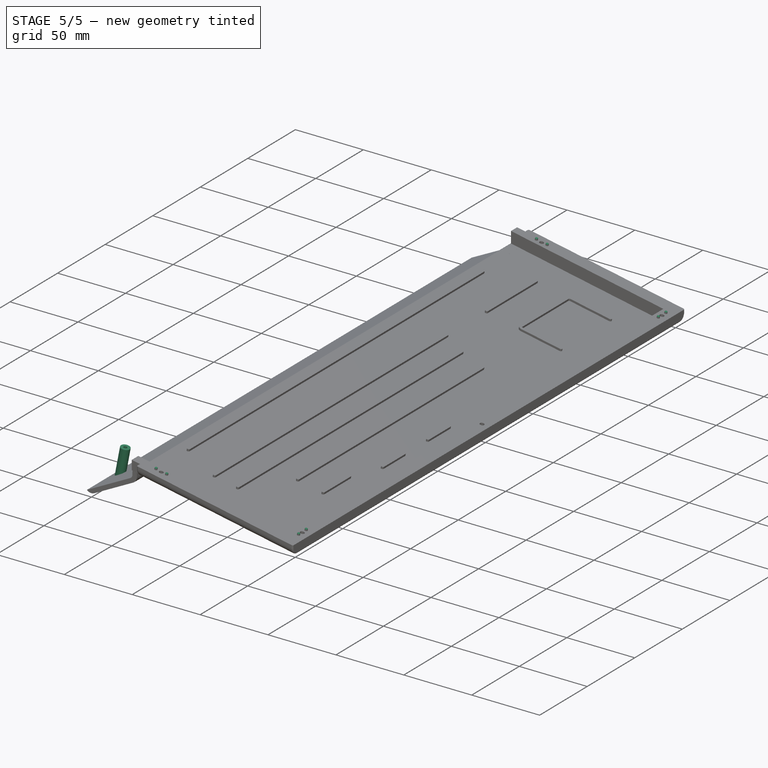
[diagram: stage 5 of 5 — iso view after this stage's code; geometry added in this stage tinted green]
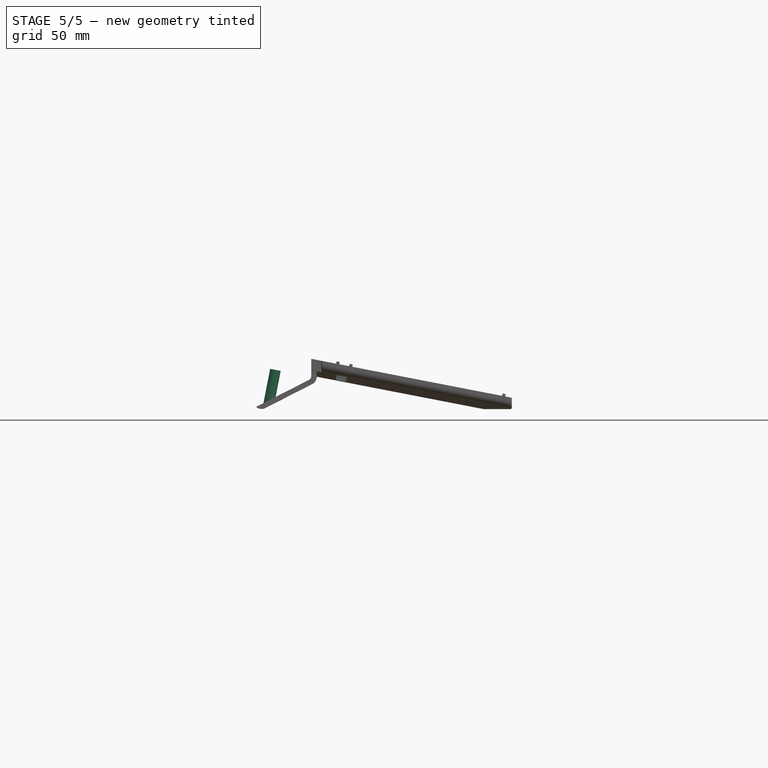
[diagram: stage 5 of 5 — front view after this stage's code; geometry added in this stage tinted green]
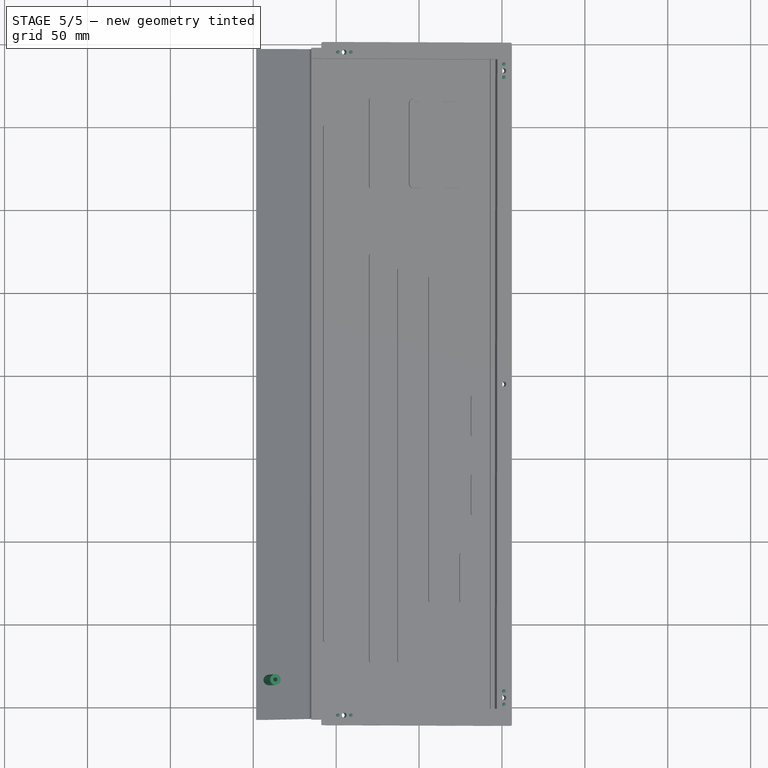
[diagram: stage 5 of 5 — top view after this stage's code; geometry added in this stage tinted green]
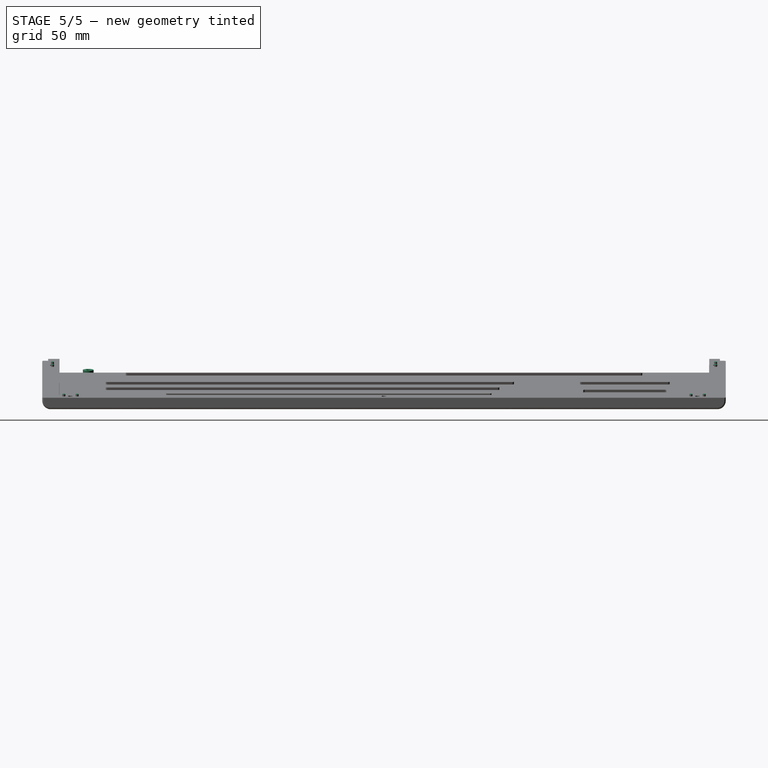
[diagram: stage 5 of 5 — right view after this stage's code; geometry added in this stage tinted green]
FEATURE [Sketcher::SketchObject] Sketch018  label="Position helpers sketch"
  ArcFitTolerance = 0
  AttachmentSupport = -> [Pocket008]
  ExternalGeometry = -> [Binder013]
  FullyConstrained = true
  MakeInternals = false
  MapMode = 5
  Placement = pos=(158.846,-5e-16,14.6709) rot=(-0.095208,0.095208,-0.990894;1.57994rad)
  sketch-geometry (8):
    g0: Circle CenterX=405 CenterY=-109.908 CenterZ=0 NormalX=0 NormalY=0 NormalZ=1 AngleXU=0 Radius=0.95
    g1: Circle CenterX=405 CenterY=-101.908 CenterZ=0 NormalX=0 NormalY=0 NormalZ=1 AngleXU=0 Radius=0.95
    g2: Circle CenterX=398.121 CenterY=-7.89856 CenterZ=0 NormalX=0 NormalY=0 NormalZ=1 AngleXU=0 Radius=0.95
    g3: Circle CenterX=390.121 CenterY=-7.89856 CenterZ=0 NormalX=0 NormalY=0 NormalZ=1 AngleXU=0 Radius=0.95
    g4: Circle CenterX=4.99975 CenterY=-101.908 CenterZ=0 NormalX=0 NormalY=0 NormalZ=1 AngleXU=0 Radius=0.95
    g5: Circle CenterX=4.99975 CenterY=-109.908 CenterZ=0 NormalX=0 NormalY=0 NormalZ=1 AngleXU=0 Radius=0.95
    g6: Circle CenterX=19.8789 CenterY=-7.89856 CenterZ=0 NormalX=0 NormalY=0 NormalZ=1 AngleXU=0 Radius=0.95
    g7: Circle CenterX=11.8789 CenterY=-7.89856 CenterZ=0 NormalX=0 NormalY=0 NormalZ=1 AngleXU=0 Radius=0.95
  constraints (16):
    c: Equal(g5,g4)
    c: Equal(g4,g3)
    c: Equal(g3,g2)
    c: Equal(g0,g1)
    c: Equal(g0,g2)
    c: Diameter(g6) = 1.9
    c: Equal(g6,g7)
    c: Equal(g6,g1)
    c: Coincident(g7,g-3)
    c: Coincident(g6,g-4)
    c: Coincident(g5,g-7)
    c: Coincident(g4,g-8)
    c: Coincident(g1,g-5)
    c: Coincident(g0,g-6)
    c: Coincident(g3,g-9)
    c: Coincident(g2,g-10)
FEATURE [PartDesign::Pad] Pad009  label="Position helpers"
  BaseFeature = -> Pocket008
  Direction = (0.190408,0,0.981705)
  Length = 1.5
  Length2 = 10
  Placement = pos=(156,0,0) rot=(0.57735,0.57735,0.57735;2.0944rad)
  Profile = -> Sketch018
  ReferenceAxis = -> Sketch018 [N_Axis]
  Suppressed = false
  Type = 0
FEATURE [PartDesign::Fillet] Fillet002  label="Position helper fillet"
  Base = -> Pad009 [Edge93,Edge99,Edge101,Edge106,Edge118,Edge123,Edge116,Edge111]
  BaseFeature = -> Pad009
  Placement = pos=(156,0,0) rot=(0.57735,0.57735,0.57735;2.0944rad)
  Radius = 0.49
  SupportTransform = false
  Suppressed = false
  UseAllEdges = false
FEATURE [Sketcher::SketchObject] Sketch019  label="Screw head base sketch"
  ArcFitTolerance = 0
  AttachmentSupport = -> [Fillet002]
  ExternalGeometry = -> [Binder013]
  FullyConstrained = true
  MakeInternals = false
  MapMode = 5
  Placement = pos=(157.571,-1.9e-15,8.08252) rot=(-0.095409,0.095409,-0.990855;1.57998rad)
  sketch-geometry (40):
    g0: ArcOfCircle CenterX=403 CenterY=-103.914 CenterZ=0 NormalX=0 NormalY=0 NormalZ=1 AngleXU=0 Radius=1.5 StartAngle=1.5708 EndAngle=3.14159
    g1: LineSegment StartX=403 StartY=-102.414 StartZ=0 EndX=407 EndY=-102.414 EndZ=0
    g2: ArcOfCircle CenterX=407 CenterY=-103.914 CenterZ=0 NormalX=0 NormalY=0 NormalZ=1 AngleXU=0 Radius=1.5 StartAngle=-3.6e-15 EndAngle=1.5708
    g3: LineSegment StartX=408.5 StartY=-103.914 StartZ=0 EndX=408.5 EndY=-107.914 EndZ=0
    g4: ArcOfCircle CenterX=407 CenterY=-107.914 CenterZ=0 NormalX=0 NormalY=0 NormalZ=1 AngleXU=0 Radius=1.5 StartAngle=4.71239 EndAngle=6.28319
    g5: LineSegment StartX=407 StartY=-109.414 StartZ=0 EndX=403 EndY=-109.414 EndZ=0
    g6: ArcOfCircle CenterX=403 CenterY=-107.914 CenterZ=0 NormalX=0 NormalY=0 NormalZ=1 AngleXU=0 Radius=1.5 StartAngle=3.14159 EndAngle=4.71239
    g7: LineSegment StartX=401.5 StartY=-107.914 StartZ=0 EndX=401.5 EndY=-103.914 EndZ=0
    g8: ArcOfCircle CenterX=392.121 CenterY=-5.90465 CenterZ=0 NormalX=0 NormalY=0 NormalZ=1 AngleXU=0 Radius=1.5 StartAngle=1.5708 EndAngle=3.14159
    g9: LineSegment StartX=392.121 StartY=-4.40465 StartZ=0 EndX=396.121 EndY=-4.40465 EndZ=0
    g10: ArcOfCircle CenterX=396.121 CenterY=-5.90465 CenterZ=0 NormalX=0 NormalY=0 NormalZ=1 AngleXU=0 Radius=1.5 StartAngle=0 EndAngle=1.5708
    g11: LineSegment StartX=397.621 StartY=-5.90465 StartZ=0 EndX=397.621 EndY=-9.90465 EndZ=0
    g12: ArcOfCircle CenterX=396.121 CenterY=-9.90465 CenterZ=0 NormalX=0 NormalY=0 NormalZ=1 AngleXU=0 Radius=1.5 StartAngle=4.71239 EndAngle=6.28319
    g13: LineSegment StartX=396.121 StartY=-11.4047 StartZ=0 EndX=392.121 EndY=-11.4047 EndZ=0
    g14: ArcOfCircle CenterX=392.121 CenterY=-9.90465 CenterZ=0 NormalX=0 NormalY=0 NormalZ=1 AngleXU=0 Radius=1.5 StartAngle=3.14159 EndAngle=4.71239
    g15: LineSegment StartX=390.621 StartY=-9.90465 StartZ=0 EndX=390.621 EndY=-5.90465 EndZ=0
    g16: ArcOfCircle CenterX=2.99975 CenterY=-103.914 CenterZ=0 NormalX=0 NormalY=0 NormalZ=1 AngleXU=0 Radius=1.5 StartAngle=1.5708 EndAngle=3.14159
    g17: LineSegment StartX=2.99975 StartY=-102.414 StartZ=0 EndX=6.99975 EndY=-102.414 EndZ=0
    g18: ArcOfCircle CenterX=6.99975 CenterY=-103.914 CenterZ=0 NormalX=0 NormalY=0 NormalZ=1 AngleXU=0 Radius=1.5 StartAngle=3.8e-15 EndAngle=1.5708
    g19: LineSegment StartX=8.49975 StartY=-103.914 StartZ=0 EndX=8.49975 EndY=-107.914 EndZ=0
    g20: ArcOfCircle CenterX=6.99975 CenterY=-107.914 CenterZ=0 NormalX=0 NormalY=0 NormalZ=1 AngleXU=0 Radius=1.5 StartAngle=4.71239 EndAngle=6.28319
    g21: LineSegment StartX=6.99975 StartY=-109.414 StartZ=0 EndX=2.99975 EndY=-109.414 EndZ=0
    g22: ArcOfCircle CenterX=2.99975 CenterY=-107.914 CenterZ=0 NormalX=0 NormalY=0 NormalZ=1 AngleXU=0 Radius=1.5 StartAngle=3.14159 EndAngle=4.71239
    g23: LineSegment StartX=1.49975 StartY=-107.914 StartZ=0 EndX=1.49975 EndY=-103.914 EndZ=0
    g24: ArcOfCircle CenterX=13.8789 CenterY=-5.90465 CenterZ=0 NormalX=0 NormalY=0 NormalZ=1 AngleXU=0 Radius=1.5 StartAngle=1.5708 EndAngle=3.14159
    g25: LineSegment StartX=13.8789 StartY=-4.40465 StartZ=0 EndX=17.8789 EndY=-4.40465 EndZ=0
    g26: ArcOfCircle CenterX=17.8789 CenterY=-5.90465 CenterZ=0 NormalX=0 NormalY=0 NormalZ=1 AngleXU=0 Radius=1.5 StartAngle=3e-16 EndAngle=1.5708
    g27: LineSegment StartX=19.3789 StartY=-5.90465 StartZ=0 EndX=19.3789 EndY=-9.90465 EndZ=0
    g28: ArcOfCircle CenterX=17.8789 CenterY=-9.90465 CenterZ=0 NormalX=0 NormalY=0 NormalZ=1 AngleXU=0 Radius=1.5 StartAngle=4.71239 EndAngle=6.28319
    g29: LineSegment StartX=17.8789 StartY=-11.4047 StartZ=0 EndX=13.8789 EndY=-11.4047 EndZ=0
    g30: ArcOfCircle CenterX=13.8789 CenterY=-9.90465 CenterZ=0 NormalX=0 NormalY=0 NormalZ=1 AngleXU=0 Radius=1.5 StartAngle=3.14159 EndAngle=4.71239
    g31: LineSegment StartX=12.3789 StartY=-9.90465 StartZ=0 EndX=12.3789 EndY=-5.90465 EndZ=0
    g32: ArcOfCircle CenterX=203 CenterY=-5.90465 CenterZ=0 NormalX=0 NormalY=0 NormalZ=1 AngleXU=0 Radius=1.5 StartAngle=1.5708 EndAngle=3.14159
    g33: LineSegment StartX=203 StartY=-4.40465 StartZ=0 EndX=207 EndY=-4.40465 EndZ=0
    g34: ArcOfCircle CenterX=207 CenterY=-5.90465 CenterZ=0 NormalX=0 NormalY=0 NormalZ=1 AngleXU=0 Radius=1.5 StartAngle=0 EndAngle=1.5708
    g35: LineSegment StartX=208.5 StartY=-5.90465 StartZ=0 EndX=208.5 EndY=-9.90465 EndZ=0
    g36: ArcOfCircle CenterX=207 CenterY=-9.90465 CenterZ=0 NormalX=0 NormalY=0 NormalZ=1 AngleXU=0 Radius=1.5 StartAngle=4.71239 EndAngle=6.28319
    g37: LineSegment StartX=207 StartY=-11.4047 StartZ=0 EndX=203 EndY=-11.4047 EndZ=0
    g38: ArcOfCircle CenterX=203 CenterY=-9.90465 CenterZ=0 NormalX=0 NormalY=0 NormalZ=1 AngleXU=0 Radius=1.5 StartAngle=3.14159 EndAngle=4.71239
    g39: LineSegment StartX=201.5 StartY=-9.90465 StartZ=0 EndX=201.5 EndY=-5.90465 EndZ=0
  constraints (95):
    c: Tangent(g0,g1) = 1.5708
    c: Tangent(g1,g2) = 1.5708
    c: Tangent(g2,g3) = 1.5708
    c: Tangent(g3,g4) = 1.5708
    c: Tangent(g4,g5) = 1.5708
    c: Tangent(g5,g6) = 1.5708
    c: Tangent(g6,g7) = 1.5708
    c: Tangent(g7,g0) = 1.5708
    c: Horizontal(g1)
    c: Horizontal(g5)
    c: Vertical(g3)
    c: Vertical(g7)
    c: Equal(g0,g2)
    c: Equal(g2,g4)
    c: Equal(g4,g6)
    c: Equal(g1,g7)
    c: DistanceX(g0,g2) = 7
    c: Radius(g2) = 1.5
    c: Tangent(g8,g9) = 1.5708
    c: Tangent(g9,g10) = 1.5708
    c: Tangent(g10,g11) = 1.5708
    c: Tangent(g11,g12) = 1.5708
    c: Tangent(g12,g13) = 1.5708
    c: Tangent(g13,g14) = 1.5708
    c: Tangent(g14,g15) = 1.5708
    c: Tangent(g15,g8) = 1.5708
    c: Horizontal(g9)
    c: Horizontal(g13)
    c: Vertical(g11)
    c: Vertical(g15)
    c: Equal(g8,g10)
    c: Equal(g10,g12)
    c: Equal(g12,g14)
    c: Equal(g2,g10)
    c: Equal(g9,g11)
    c: Equal(g5,g9)
    c: Tangent(g16,g17) = 1.5708
    c: Tangent(g17,g18) = 1.5708
    c: Tangent(g18,g19) = 1.5708
    c: Tangent(g19,g20) = 1.5708
    c: Tangent(g20,g21) = 1.5708
    c: Tangent(g21,g22) = 1.5708
    c: Tangent(g22,g23) = 1.5708
    c: Tangent(g23,g16) = 1.5708
    c: Horizontal(g17)
    c: Horizontal(g21)
    c: Vertical(g19)
    c: Vertical(g23)
    c: Equal(g16,g18)
    c: Equal(g18,g20)
    c: Equal(g20,g22)
    c: Equal(g2,g18)
    c: Equal(g5,g21)
    c: Equal(g21,g19)
    c: Tangent(g24,g25) = 1.5708
    c: Tangent(g25,g26) = 1.5708
    c: Tangent(g26,g27) = 1.5708
    c: Tangent(g27,g28) = 1.5708
    c: Tangent(g28,g29) = 1.5708
    c: Tangent(g29,g30) = 1.5708
    c: Tangent(g30,g31) = 1.5708
    c: Tangent(g31,g24) = 1.5708
    c: Horizontal(g25)
    c: Horizontal(g29)
    c: Vertical(g27)
    c: Vertical(g31)
    c: Equal(g24,g26)
    c: Equal(g26,g28)
    c: Equal(g28,g30)
    c: Equal(g29,g27)
    c: Equal(g29,g21)
    c: Equal(g18,g26)
    c: Tangent(g32,g33) = 1.5708
    c: Tangent(g33,g34) = 1.5708
    c: Tangent(g34,g35) = 1.5708
    c: Tangent(g35,g36) = 1.5708
    c: Tangent(g36,g37) = 1.5708
    c: Tangent(g37,g38) = 1.5708
    c: Tangent(g38,g39) = 1.5708
    c: Tangent(g39,g32) = 1.5708
    c: Horizontal(g33)
    c: Horizontal(g37)
    c: Vertical(g35)
    c: Vertical(g39)
    c: Equal(g32,g34)
    c: Equal(g34,g36)
    c: Equal(g36,g38)
    c: Equal(g18,g34)
    c: Equal(g37,g35)
    c: Equal(g21,g37)
    c: Symmetric(g22,g18,g-7)
    c: Symmetric(g10,g14,g-6)
    c: Symmetric(g2,g6,g-5)
    c: Symmetric(g34,g38,g-4)
    c: Symmetric(g26,g30,g-3)
FEATURE [PartDesign::Pocket] Pocket009  label="Screw head base"
  BaseFeature = -> Fillet002
  Direction = (-0.190809,0,-0.981627)
  Length = 5
  Length2 = 5
  Placement = pos=(156,0,0) rot=(0.57735,0.57735,0.57735;2.0944rad)
  Profile = -> Sketch019
  ReferenceAxis = -> Sketch019 [N_Axis]
  Suppressed = false
  Type = 0
FEATURE [PartDesign::Pocket] Pocket010  label="Feet pockets"
  BaseFeature = -> Pocket009
  Direction = (0.000408121,0,-1)
  Length = 1
  Length2 = 5
  Placement = pos=(156,0,0) rot=(0.57735,0.57735,0.57735;2.0944rad)
  Profile = -> Sketch020
  ReferenceAxis = -> Sketch020 [N_Axis]
  Reversed = true
  Suppressed = false
  Type = 0
FEATURE [Sketcher::SketchObject] Sketch023
  ArcFitTolerance = 1e-06
  AttachmentOffset = pos=(0,0,4) rot=(0,0,1;0rad)
  AttachmentSupport = -> [Binder010]
  ExternalGeometry = -> [Binder010]
  FullyConstrained = true
  MakeInternals = false
  MapMode = 5
  Placement = pos=(6.48751,0,33.3753) rot=(0.995396,0,-0.095846;3.14159rad)
  sketch-geometry (2):
    g0: Circle CenterX=6.99812 CenterY=383.416 CenterZ=0 NormalX=0 NormalY=0 NormalZ=1 AngleXU=0 Radius=1.25
    g1: Circle CenterX=6.99812 CenterY=383.416 CenterZ=0 NormalX=0 NormalY=0 NormalZ=1 AngleXU=0 Radius=3.25
  constraints (5):
    c: DistanceY(g-3,g0) = 23
    c: DistanceX(g-3,g0) = 2
    c: Diameter(g0) = 2.5
    c: Diameter(g1) = 6.5
    c: Coincident(g1,g0)
FEATURE [PartDesign::Pad] Pad010  label="Boot select column"
  BaseFeature = -> Pocket010
  Direction = (-0.190809,0,-0.981627)
  Length = 10
  Length2 = 10
  Placement = pos=(156,0,0) rot=(0.57735,0.57735,0.57735;2.0944rad)
  Profile = -> Sketch023 [Edge2]
  ReferenceAxis = -> Sketch023 [N_Axis]
  Suppressed = false
  Type = 3
  UpToFace = -> Pocket010 [Face86]
FEATURE [PartDesign::Pocket] Pocket013  label="Boot select hole"
  BaseFeature = -> Pad010
  Direction = (0.190809,0,0.981627)
  Length = 5
  Length2 = 5
  Placement = pos=(156,0,0) rot=(0.57735,0.57735,0.57735;2.0944rad)
  Profile = -> Sketch023 [Edge1]
  ReferenceAxis = -> Sketch023 [N_Axis]
  Reversed = true
  Suppressed = false
  Type = 1
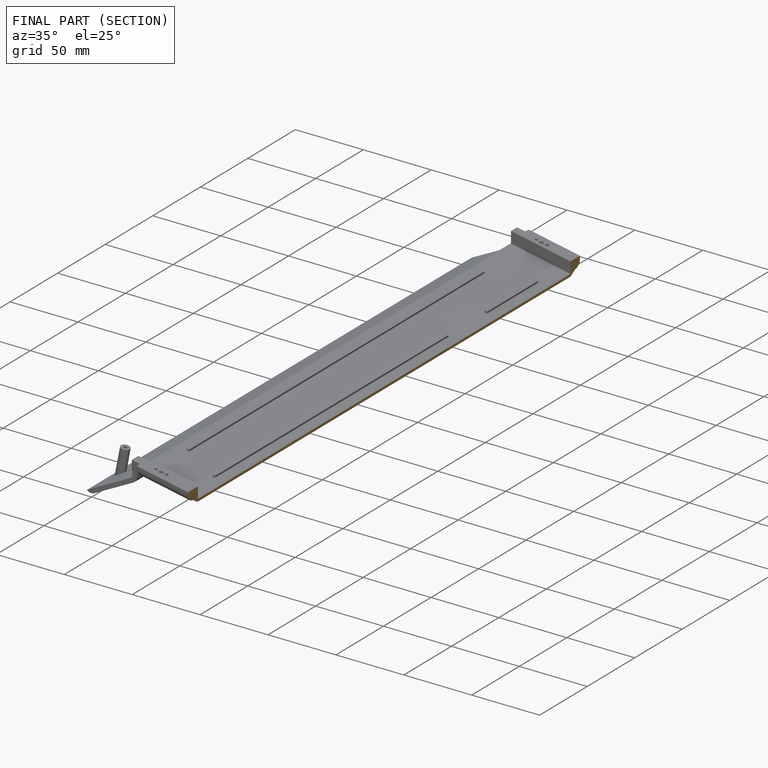
[diagram: finished part — half-section view (interior)]
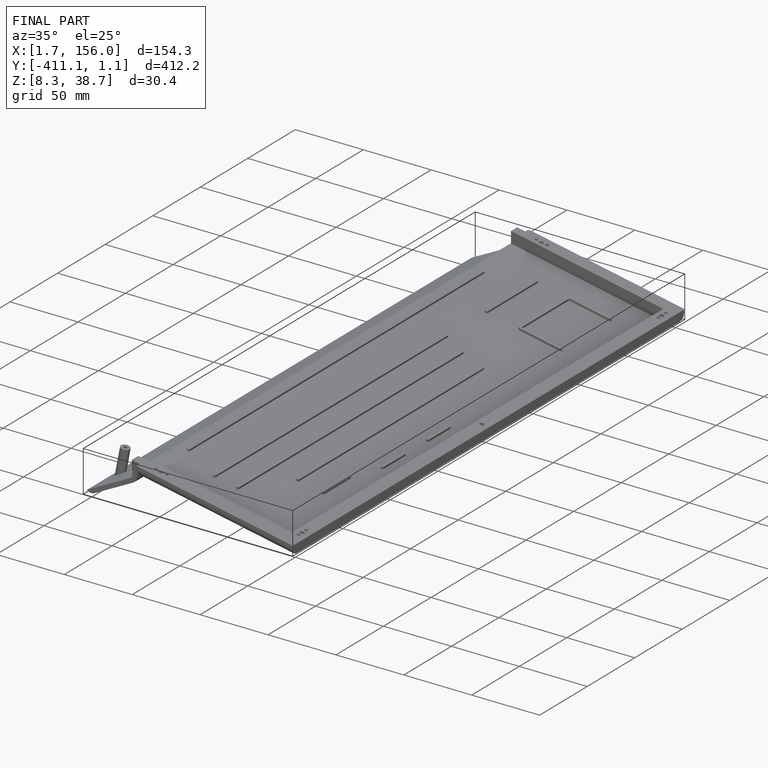
[diagram: finished part — iso view with bounding-box wireframe]
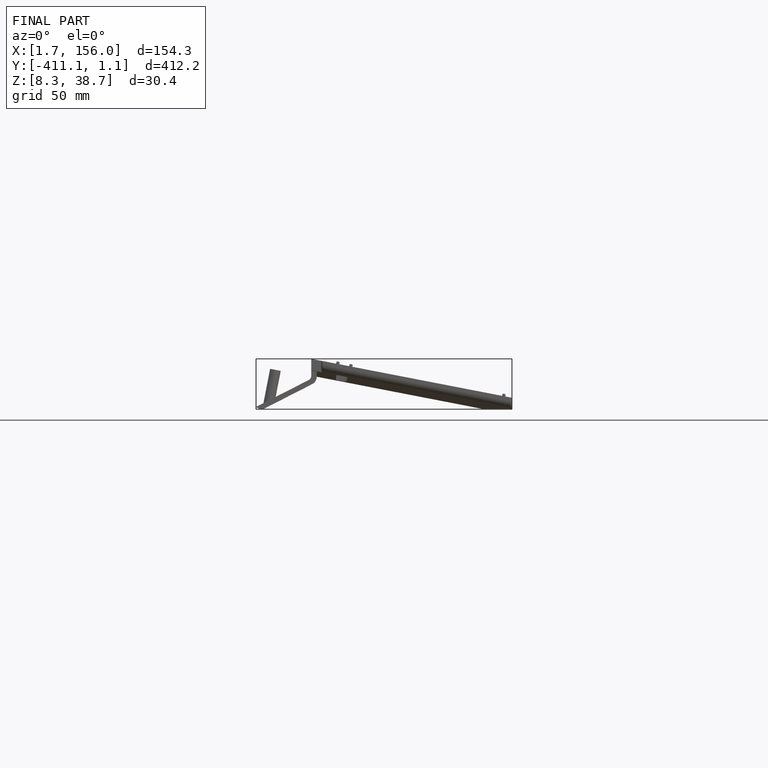
[diagram: finished part — front view with bounding-box wireframe]
